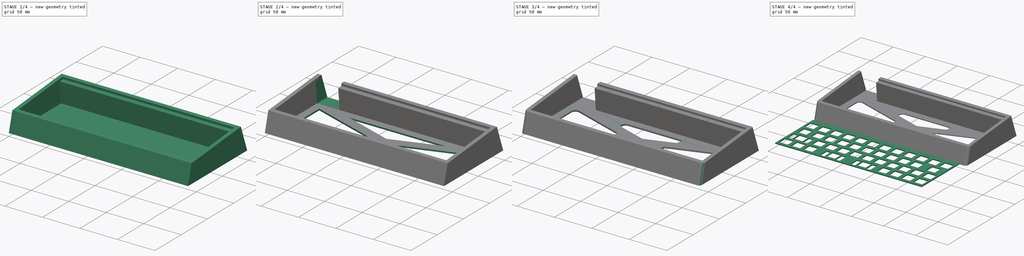
[diagram: build sequence overview — one tinted view per stage of 4, left to right]
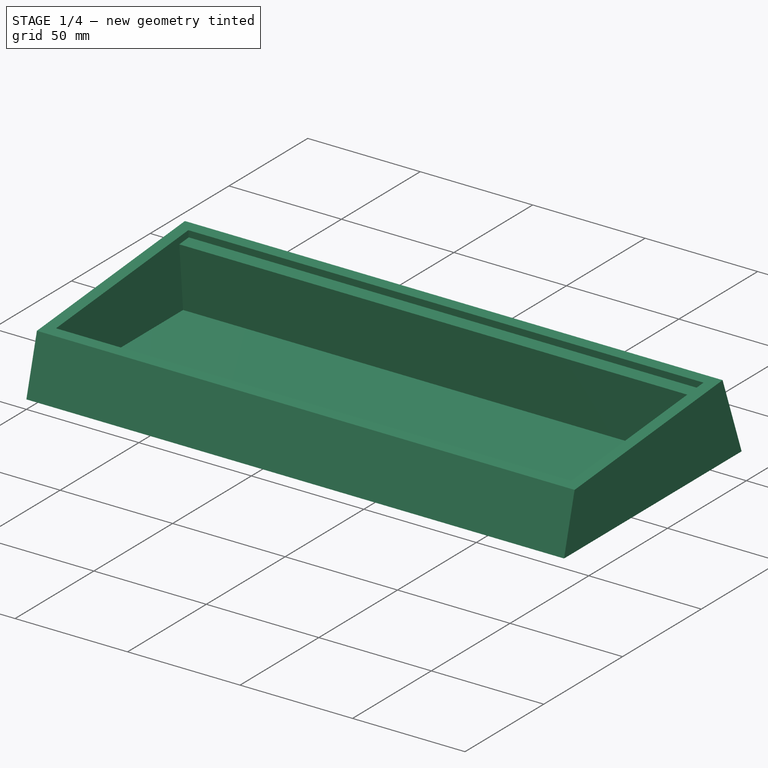
[diagram: stage 1 of 4 — iso view after this stage's code; geometry added in this stage tinted green]
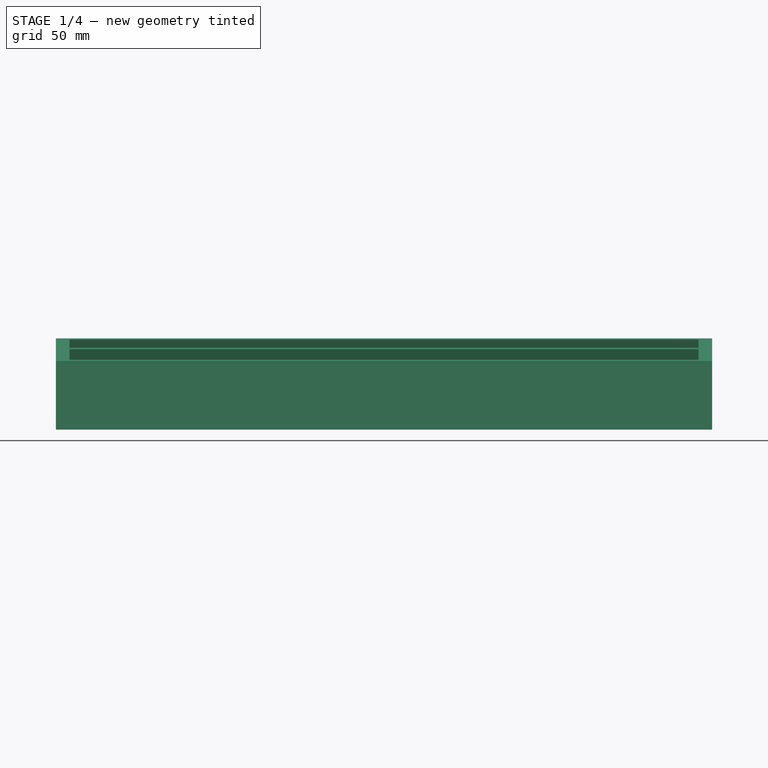
[diagram: stage 1 of 4 — front view after this stage's code; geometry added in this stage tinted green]
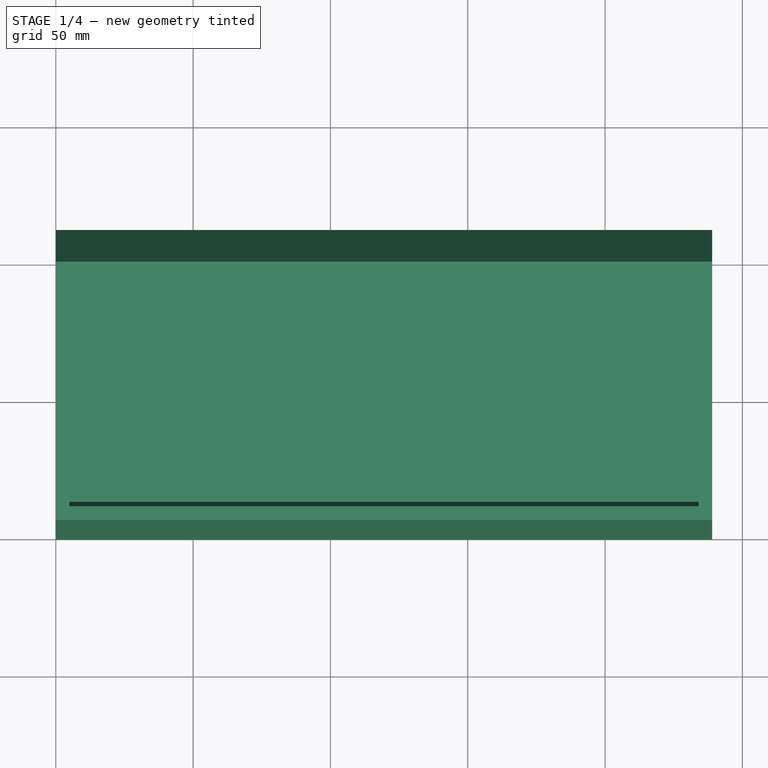
[diagram: stage 1 of 4 — top view after this stage's code; geometry added in this stage tinted green]
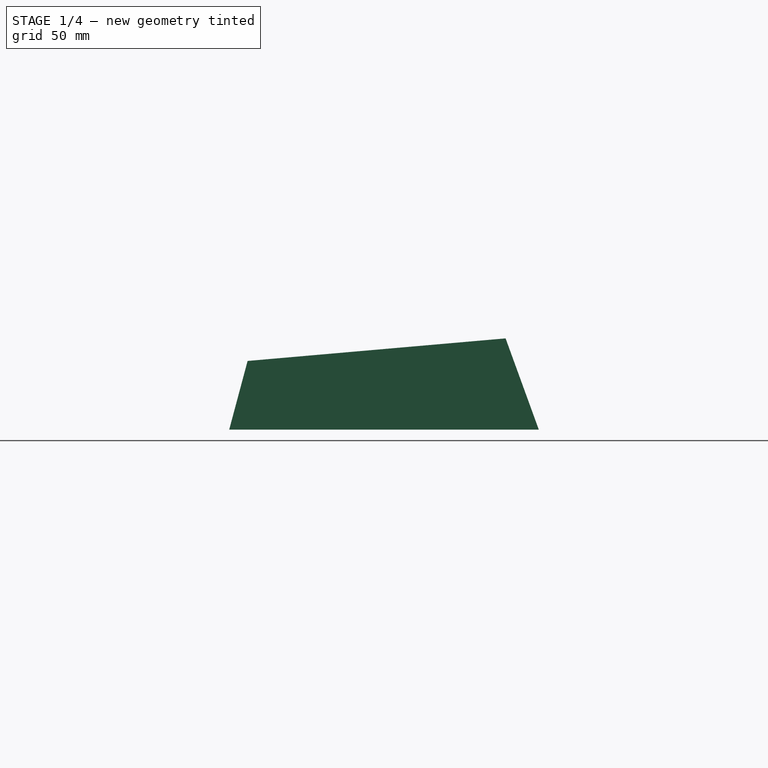
[diagram: stage 1 of 4 — right view after this stage's code; geometry added in this stage tinted green]
FCSTD DOCUMENT  (FreeCAD 0.20R)
Label: 40percent
License: All rights reserved
LicenseURL: http://en.wikipedia.org/wiki/All_rights_reserved
objects: Sketcher::SketchObject×9, PartDesign::Pad×4, PartDesign::Fillet×4, PartDesign::Pocket×3, PartDesign::Hole×2, PartDesign::Body×2
note: 37 computed .brp shape members not serialized (recipe doc carries the construction recipe); baked Part::Feature solids carry a one-line shape summary decoded from their .brp

FEATURE [Sketcher::SketchObject] Sketch
  FullyConstrained = true
  MapMode = 5
  Placement = pos=(0,0,0) rot=(0.57735,0.57735,0.57735;2.0944rad)
  Support = -> [YZ_Plane]
  sketch-geometry (4):
    g0: LineSegment StartX=0 StartY=0 StartZ=0 EndX=6.69873 EndY=25 EndZ=0
    g1: LineSegment StartX=6.69873 StartY=25 StartZ=0 EndX=100.64 EndY=33.2188 EndZ=0
    g2: LineSegment StartX=100.64 StartY=33.2188 StartZ=0 EndX=112.731 EndY=0 EndZ=0
    g3: LineSegment StartX=112.731 StartY=0 StartZ=0 EndX=0 EndY=0 EndZ=0
  constraints (11):
    c: Coincident(g-1,g0)
    c: Coincident(g0,g1)
    c: Coincident(g1,g2)
    c: PointOnObject(g2,g-1)
    c: Coincident(g2,g3)
    c: Coincident(g3,g0)
    c: Angle(g3,g1) = 0.0872665
    c: Angle(g3,g0) = 1.309
    c: Angle(g2,g3) = 1.22173
    c: DistanceY(g0,g0) = 25
    c: Distance(g1) = 94.3
FEATURE [PartDesign::Pad] Pad
  Direction = (1,-2e-16,3e-16)
  Length = 239
  Length2 = 10
  Placement = pos=(0,0,0) rot=(0.57735,0.57735,0.57735;2.0944rad)
  Profile = -> Sketch
  ReferenceAxis = -> Sketch [N_Axis]
  Type = 0
FEATURE [Sketcher::SketchObject] Sketch003
  ExternalGeometry = -> [Pad]
  FullyConstrained = true
  MapMode = 5
  Placement = pos=(-7.8e-15,-2.11972,24.2285) rot=(0.043578,0.043578,-0.998099;1.5727rad)
  Support = -> [Pad]
  sketch-geometry (4):
    g0: LineSegment StartX=-98.1521 StartY=234 StartZ=0 EndX=-13.8521 EndY=234 EndZ=0
    g1: LineSegment StartX=-13.8521 StartY=234 StartZ=0 EndX=-13.8521 EndY=5 EndZ=0
    g2: LineSegment StartX=-13.8521 StartY=5 StartZ=0 EndX=-98.1521 EndY=5 EndZ=0
    g3: LineSegment StartX=-98.1521 StartY=5 StartZ=0 EndX=-98.1521 EndY=234 EndZ=0
  constraints (12):
    c: Coincident(g0,g1)
    c: Coincident(g1,g2)
    c: Coincident(g2,g3)
    c: Coincident(g3,g0)
    c: Horizontal(g0)
    c: Horizontal(g2)
    c: Vertical(g1)
    c: Vertical(g3)
    c: DistanceY(g-3,g1) = 5
    c: DistanceX(g1,g-3) = 5
    c: DistanceX(g-5,g0) = 5
    c: DistanceY(g0,g-5) = 5
FEATURE [PartDesign::Pocket] Pocket
  AlongSketchNormal = false
  BaseFeature = -> Pad
  Direction = (4e-16,0.0871557,-0.996195)
  Length = 0
  Length2 = 5
  Offset = -2
  Placement = pos=(0,0,0) rot=(0.57735,0.57735,0.57735;2.0944rad)
  Profile = -> Sketch003
  ReferenceAxis = -> Sketch003 [N_Axis]
  Type = 3
  UpToFace = -> Pad [Face4]
FEATURE [Sketcher::SketchObject] Sketch004
  ExternalGeometry = -> [Pocket]
  FullyConstrained = true
  MapMode = 5
  Placement = pos=(4.32e-14,97.7786,8.55452) rot=(0.593426,0.593426,-0.543775;2.14549rad)
  Support = -> [Pocket]
  sketch-geometry (4):
    g0: LineSegment StartX=6.5872 StartY=5 StartZ=0 EndX=-21.321 EndY=5 EndZ=0
    g1: LineSegment StartX=-21.321 StartY=5 StartZ=0 EndX=-21.321 EndY=234 EndZ=0
    g2: LineSegment StartX=-21.321 StartY=234 StartZ=0 EndX=6.5872 EndY=234 EndZ=0
    g3: LineSegment StartX=6.5872 StartY=234 StartZ=0 EndX=6.5872 EndY=5 EndZ=0
  constraints (11):
    c: Coincident(g0,g1)
    c: Coincident(g1,g2)
    c: Coincident(g2,g3)
    c: Coincident(g3,g0)
    c: Horizontal(g0)
    c: Horizontal(g2)
    c: Vertical(g1)
    c: Vertical(g3)
    c: Coincident(g0,g-3)
    c: PointOnObject(g1,g-5)
    c: DistanceX(g-5,g1) = 3
FEATURE [PartDesign::Pad] Pad001
  BaseFeature = -> Pocket
  Direction = (-4e-16,-0.996195,-0.0871557)
  Length = 6
  Length2 = 10
  Placement = pos=(0,0,0) rot=(0.57735,0.57735,0.57735;2.0944rad)
  Profile = -> Sketch004
  ReferenceAxis = -> Sketch004 [N_Axis]
  Type = 0
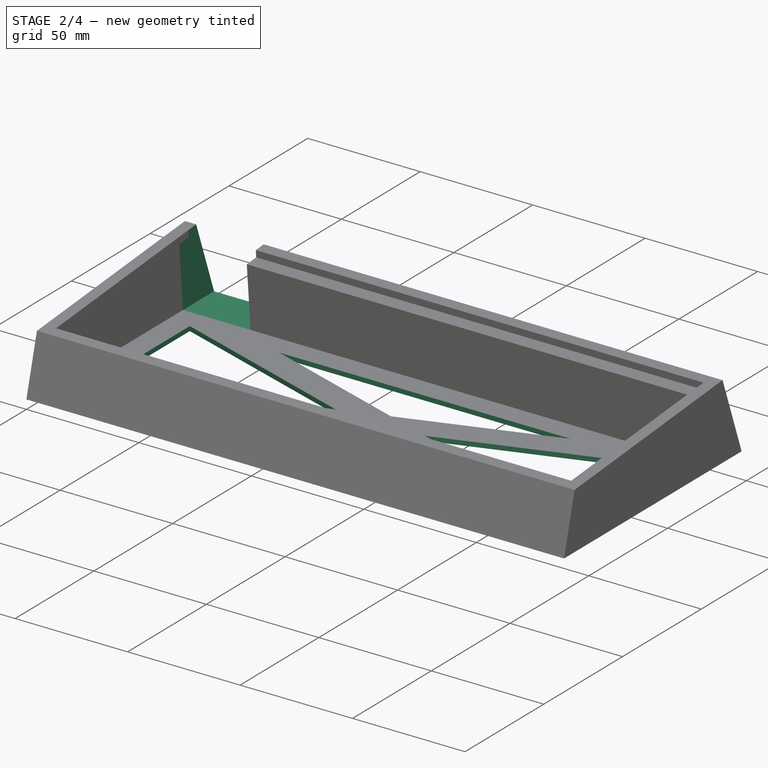
[diagram: stage 2 of 4 — iso view after this stage's code; geometry added in this stage tinted green]
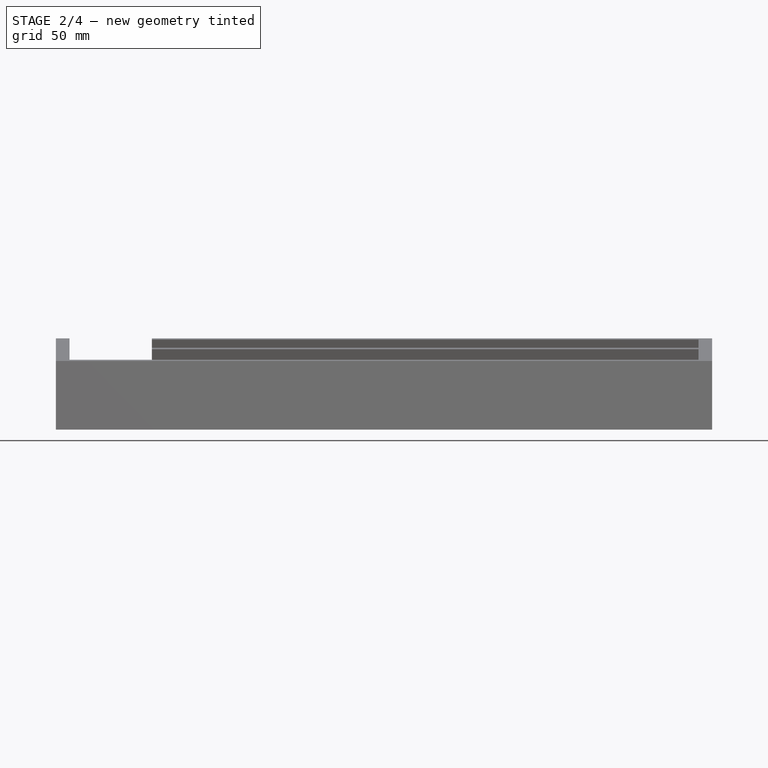
[diagram: stage 2 of 4 — front view after this stage's code; geometry added in this stage tinted green]
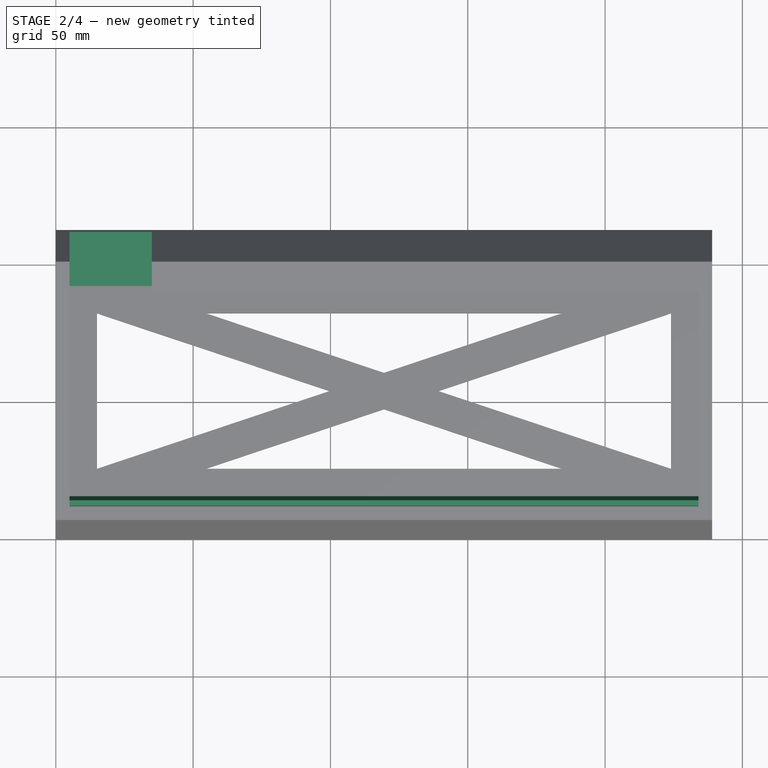
[diagram: stage 2 of 4 — top view after this stage's code; geometry added in this stage tinted green]
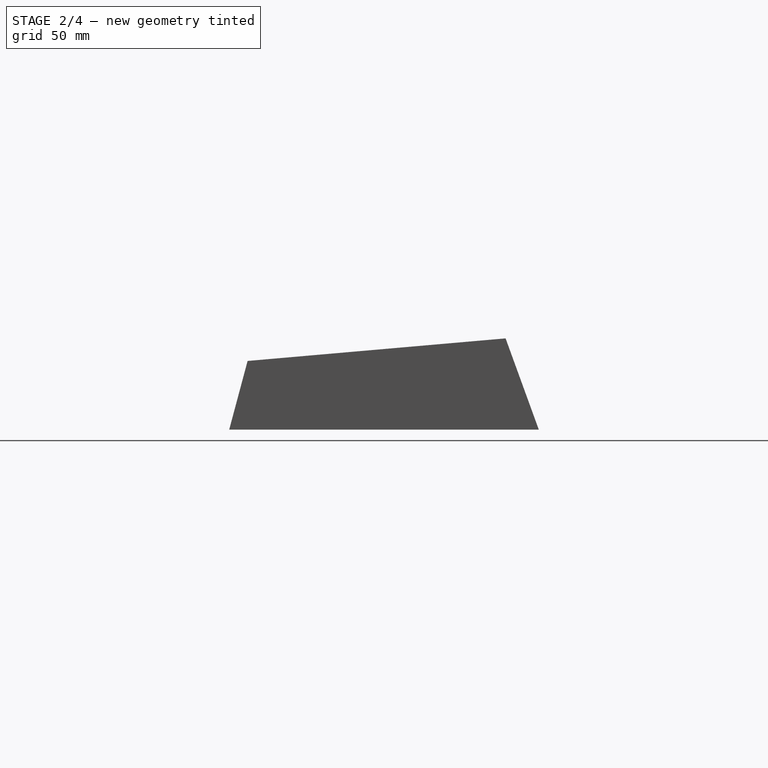
[diagram: stage 2 of 4 — right view after this stage's code; geometry added in this stage tinted green]
FEATURE [PartDesign::Body] Body001  label="Plate"
  Group = -> [Sketch008,Pad003,Sketch009,Hole]
  Origin = -> Origin001
  Placement = pos=(5.2,95.8723,29.789) rot=(1,0,0;0.087266rad)
  Tip = -> Hole
FEATURE [PartDesign::Pad] Pad004
  BaseFeature = -> Pad001
  Direction = (7e-16,0.996195,0.0871557)
  Length = 2
  Length2 = 10
  Placement = pos=(0,0,0) rot=(0.57735,0.57735,0.57735;2.0944rad)
  Profile = -> Sketch005
  ReferenceAxis = -> Sketch005 [N_Axis]
  Type = 0
FEATURE [Sketcher::SketchObject] Sketch006
  ExternalGeometry = -> [Pad004]
  FullyConstrained = true
  MapMode = 5
  Placement = pos=(-7.8e-15,-2.11972,24.2285) rot=(0.043578,0.043578,-0.998099;1.5727rad)
  Support = -> [Pad004]
  sketch-geometry (4):
    g0: LineSegment StartX=-112.302 StartY=35 StartZ=0 EndX=-92.1521 EndY=35 EndZ=0
    g1: LineSegment StartX=-92.1521 StartY=35 StartZ=0 EndX=-92.1521 EndY=5 EndZ=0
    g2: LineSegment StartX=-92.1521 StartY=5 StartZ=0 EndX=-112.302 EndY=5 EndZ=0
    g3: LineSegment StartX=-112.302 StartY=5 StartZ=0 EndX=-112.302 EndY=35 EndZ=0
  constraints (12):
    c: Coincident(g0,g1)
    c: Coincident(g1,g2)
    c: Coincident(g2,g3)
    c: Coincident(g3,g0)
    c: Horizontal(g0)
    c: Horizontal(g2)
    c: Vertical(g1)
    c: Vertical(g3)
    c: DistanceY(g1,g1) = 30
    c: PointOnObject(g0,g-3)
    c: PointOnObject(g0,g-4)
    c: PointOnObject(g1,g-5)
FEATURE [PartDesign::Pocket] Pocket001
  BaseFeature = -> Pad004
  Direction = (1.4e-15,0.0871557,-0.996195)
  Length = 0
  Length2 = 5
  Placement = pos=(0,0,0) rot=(0.57735,0.57735,0.57735;2.0944rad)
  Profile = -> Sketch006
  ReferenceAxis = -> Sketch006 [N_Axis]
  Type = 3
  UpToFace = -> Pad004 [Face13]
FEATURE [Sketcher::SketchObject] Sketch007
  ExternalGeometry = -> [Pocket001]
  FullyConstrained = true
  MapMode = 5
  Placement = pos=(-1.2e-15,1.1e-15,1.99239) rot=(0,0,-1;1.5708rad)
  Support = -> [Pocket001]
  sketch-geometry (20):
    g0: LineSegment StartX=-92.3298 StartY=5 StartZ=0 EndX=-15.7384 EndY=234 EndZ=0
    g1: LineSegment StartX=-92.3298 StartY=234 StartZ=0 EndX=-15.7384 EndY=5 EndZ=0
    g2: GeomPoint X=-54.0341 Y=119.5 Z=0
    g3: LineSegment StartX=-92.3298 StartY=224 StartZ=0 EndX=-15.7384 EndY=224 EndZ=0
    g4: LineSegment StartX=-92.3298 StartY=15 StartZ=0 EndX=-15.7384 EndY=15 EndZ=0
    g5: LineSegment StartX=-82.3298 StartY=5 StartZ=0 EndX=-82.3298 EndY=234 EndZ=0
    g6: LineSegment StartX=-25.7384 StartY=5 StartZ=0 EndX=-25.7384 EndY=234 EndZ=0
    g7: LineSegment StartX=-54.0341 StartY=99.6011 StartZ=0 EndX=-82.3298 EndY=15 EndZ=0
    g8: LineSegment StartX=-82.3298 StartY=15 StartZ=0 EndX=-25.7384 EndY=15 EndZ=0
    g9: LineSegment StartX=-25.7384 StartY=15 StartZ=0 EndX=-54.0341 EndY=99.6011 EndZ=0
    g10: LineSegment StartX=-54.0341 StartY=139.399 StartZ=0 EndX=-82.3298 EndY=224 EndZ=0
    g11: LineSegment StartX=-82.3298 StartY=224 StartZ=0 EndX=-25.7384 EndY=224 EndZ=0
    g12: LineSegment StartX=-25.7384 StartY=224 StartZ=0 EndX=-54.0341 EndY=139.399 EndZ=0
    g13: LineSegment StartX=-82.3298 StartY=54.7978 StartZ=0 EndX=-82.3298 EndY=184.202 EndZ=0
    g14: LineSegment StartX=-82.3298 StartY=184.202 StartZ=0 EndX=-60.6895 EndY=119.5 EndZ=0
    g15: LineSegment StartX=-60.6895 StartY=119.5 StartZ=0 EndX=-82.3298 EndY=54.7978 EndZ=0
    g16: LineSegment StartX=-47.3787 StartY=119.5 StartZ=0 EndX=-25.7384 EndY=54.7978 EndZ=0
    g17: LineSegment StartX=-25.7384 StartY=54.7978 StartZ=0 EndX=-25.7384 EndY=184.202 EndZ=0
    g18: LineSegment StartX=-25.7384 StartY=184.202 StartZ=0 EndX=-47.3787 EndY=119.5 EndZ=0
    g19: GeomPoint X=-82.3298 Y=34.8989 Z=0
  constraints (57):
    c: PointOnObject(g2,g0)
    c: PointOnObject(g2,g1)
    c: Horizontal(g4)
    c: Vertical(g5)
    c: Vertical(g6)
    c: DistanceY(g3,g0) = 10
    c: DistanceY(g3,g1) = 10
    c: DistanceY(g0,g4) = 10
    c: DistanceX(g6,g1) = 10
    c: DistanceX(g0,g5) = 10
    c: PointOnObject(g7,g5)
    c: Coincident(g7,g8)
    c: PointOnObject(g8,g6)
    c: Horizontal(g8)
    c: Coincident(g8,g9)
    c: Coincident(g9,g7)
    c: PointOnObject(g10,g5)
    c: Coincident(g10,g11)
    c: PointOnObject(g11,g6)
    c: Coincident(g11,g12)
    c: Coincident(g12,g10)
    c: PointOnObject(g13,g5)
    c: PointOnObject(g13,g5)
    c: Coincident(g13,g14)
    c: Coincident(g14,g15)
    c: Coincident(g15,g13)
    c: PointOnObject(g16,g6)
    c: Coincident(g16,g17)
    c: PointOnObject(g17,g6)
    c: Coincident(g17,g18)
    c: Coincident(g18,g16)
    c: Horizontal(g14,g2)
    c: Vertical(g7,g2)
    c: Symmetric(g16,g14,g2)
    c: Symmetric(g10,g7,g2)
    c: Parallel(g1,g9)
    c: Parallel(g9,g16)
    c: PointOnObject(g7,g4)
    c: Horizontal(g11)
    c: PointOnObject(g10,g3)
    c: Parallel(g0,g15)
    c: Parallel(g14,g1)
    c: Parallel(g18,g0)
    c: PointOnObject(g19,g0)
    c: Symmetric(g7,g13,g19)
    c: Coincident(g1,g-7)
    c: PointOnObject(g5,g-7)
    c: PointOnObject(g6,g-7)
    c: Coincident(g-7,g0)
    c: PointOnObject(g6,g-3)
    c: Coincident(g1,g-6)
    c: Coincident(g0,g-5)
    c: PointOnObject(g5,g-3)
    c: Vertical(g3,g1)
    c: Vertical(g3,g0)
    c: Vertical(g4,g1)
    c: Vertical(g4,g0)
FEATURE [PartDesign::Pocket] Pocket002
  BaseFeature = -> Pocket001
  Direction = (1.7e-15,-1e-15,-1)
  Length = 0
  Length2 = 5
  Placement = pos=(0,0,0) rot=(0.57735,0.57735,0.57735;2.0944rad)
  Profile = -> Sketch007
  ReferenceAxis = -> Sketch007 [N_Axis]
  Type = 3
  UpToFace = -> Pocket001 [Face2]
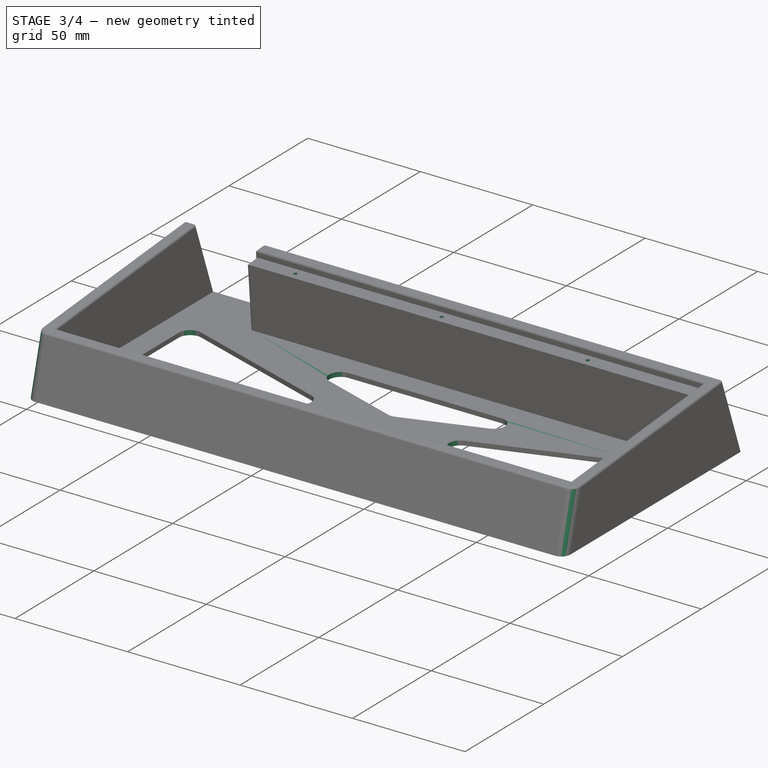
[diagram: stage 3 of 4 — iso view after this stage's code; geometry added in this stage tinted green]
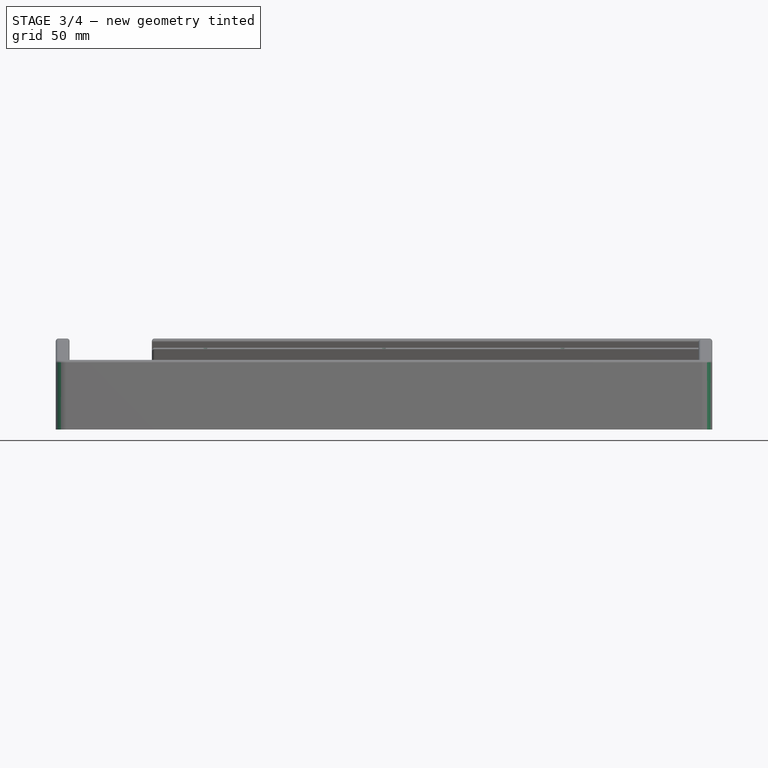
[diagram: stage 3 of 4 — front view after this stage's code; geometry added in this stage tinted green]
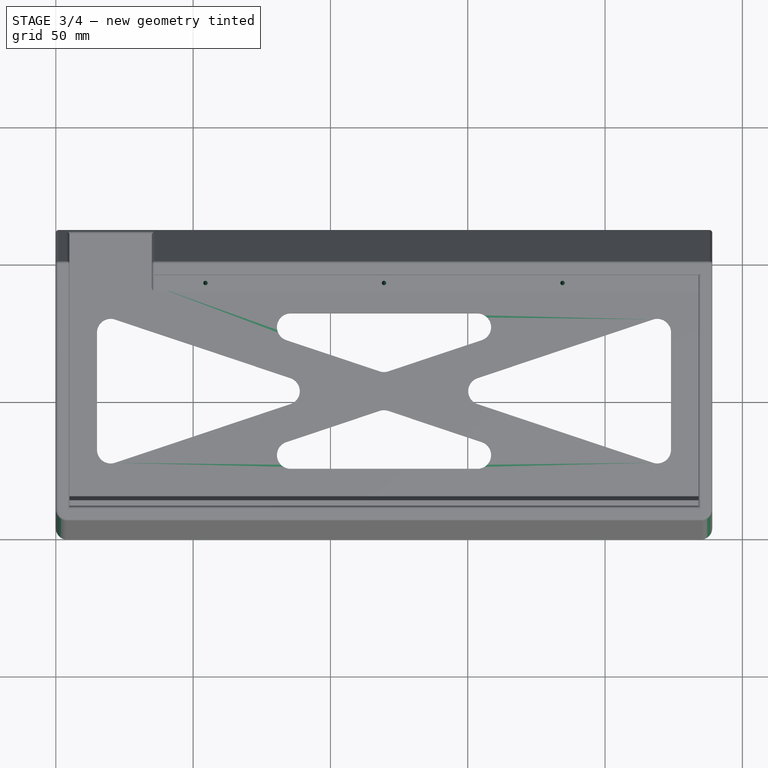
[diagram: stage 3 of 4 — top view after this stage's code; geometry added in this stage tinted green]
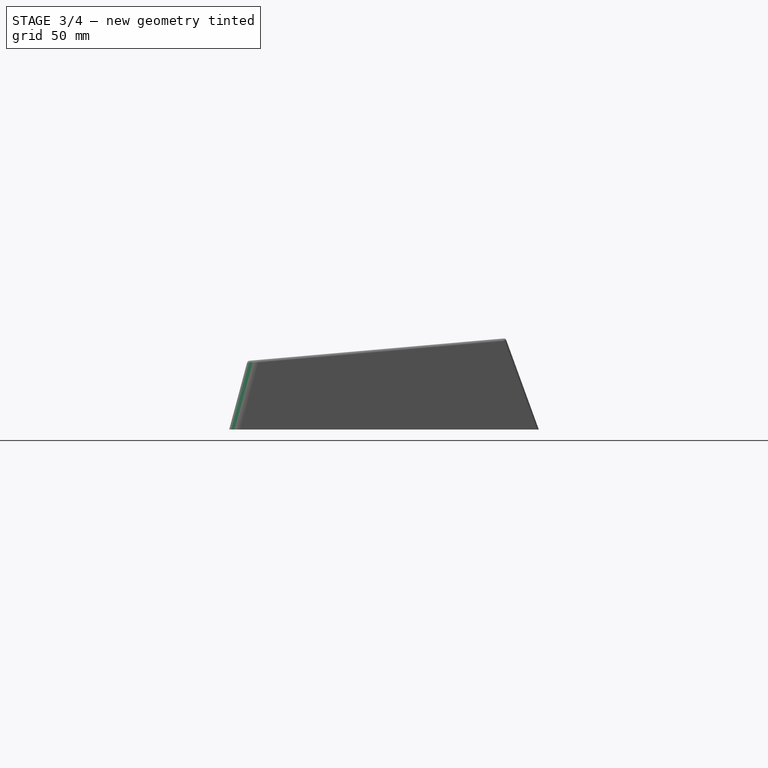
[diagram: stage 3 of 4 — right view after this stage's code; geometry added in this stage tinted green]
FEATURE [Sketcher::SketchObject] Sketch010
  ExternalGeometry = -> [Pocket002]
  FullyConstrained = true
  MapMode = 5
  Placement = pos=(-5.1e-15,-1.85825,21.2399) rot=(0.043578,0.043578,-0.998099;1.5727rad)
  Support = -> [Pocket002]
  sketch-geometry (6):
    g0: Circle CenterX=-95.1521 CenterY=54.5 CenterZ=0 NormalX=0 NormalY=0 NormalZ=1 AngleXU=0 Radius=1
    g1: Circle CenterX=-95.1521 CenterY=119.5 CenterZ=0 NormalX=0 NormalY=0 NormalZ=1 AngleXU=0 Radius=1
    g2: Circle CenterX=-95.1521 CenterY=184.5 CenterZ=0 NormalX=0 NormalY=0 NormalZ=1 AngleXU=0 Radius=1
    g3: LineSegment StartX=-95.1521 StartY=54.5 StartZ=0 EndX=-95.1521 EndY=119.5 EndZ=0
    g4: LineSegment StartX=-95.1521 StartY=119.5 StartZ=0 EndX=-95.1521 EndY=184.5 EndZ=0
    g5: GeomPoint X=-103.152 Y=119.5 Z=0
  constraints (14):
    c: Equal(g2,g1)
    c: Equal(g1,g0)
    c: Coincident(g3,g0)
    c: Coincident(g3,g1)
    c: Vertical(g3)
    c: Coincident(g4,g1)
    c: Coincident(g4,g2)
    c: Vertical(g4)
    c: Equal(g4,g3)
    c: Diameter(g0) = 2
    c: DistanceX(g-3,g0) = 3
    c: Symmetric(g-4,g-5,g5)
    c: Horizontal(g1,g5)
    c: DistanceY(g1,g2) = 65
FEATURE [PartDesign::Hole] Hole001
  BaseFeature = -> Pocket002
  CustomThreadClearance = 0
  Depth = 539.714
  DepthType = 1
  Diameter = 1.6
  DrillForDepth = false
  DrillPoint = 1
  DrillPointAngle = 118
  HoleCutCountersinkAngle = 90
  HoleCutCustomValues = false
  HoleCutDepth = 0
  HoleCutDiameter = 6.1
  HoleCutType = 0
  ModelThread = false
  Placement = pos=(0,0,0) rot=(0.57735,0.57735,0.57735;2.0944rad)
  Profile = -> Sketch010
  Tapered = false
  TaperedAngle = 90
  ThreadClass = 0
  ThreadDepth = 539.714
  ThreadDepthType = 0
  ThreadDirection = 0
  ThreadFit = 0
  ThreadSize = 6
  ThreadType = 1
  Threaded = true
  UseCustomThreadClearance = false
FEATURE [PartDesign::Fillet] Fillet
  Base = -> Hole001 [Edge3,Edge4]
  BaseFeature = -> Hole001
  Placement = pos=(0,0,0) rot=(0.57735,0.57735,0.57735;2.0944rad)
  Radius = 4
  SupportTransform = false
  UseAllEdges = false
FEATURE [PartDesign::Fillet] Fillet001
  Base = -> Fillet [Edge44,Face5,Edge40,Edge43,Edge42,Edge41,Edge87,Edge88]
  BaseFeature = -> Fillet
  Placement = pos=(0,0,0) rot=(0.57735,0.57735,0.57735;2.0944rad)
  Radius = 1
  SupportTransform = false
  UseAllEdges = false
FEATURE [PartDesign::Fillet] Fillet002
  Base = -> Fillet001 [Edge66,Edge81,Edge68,Edge72,Edge87,Edge65,Edge71,Edge74,Edge82,Edge84,Edge88,Edge90]
  BaseFeature = -> Fillet001
  Placement = pos=(0,0,0) rot=(0.57735,0.57735,0.57735;2.0944rad)
  Radius = 5
  SupportTransform = false
  UseAllEdges = false
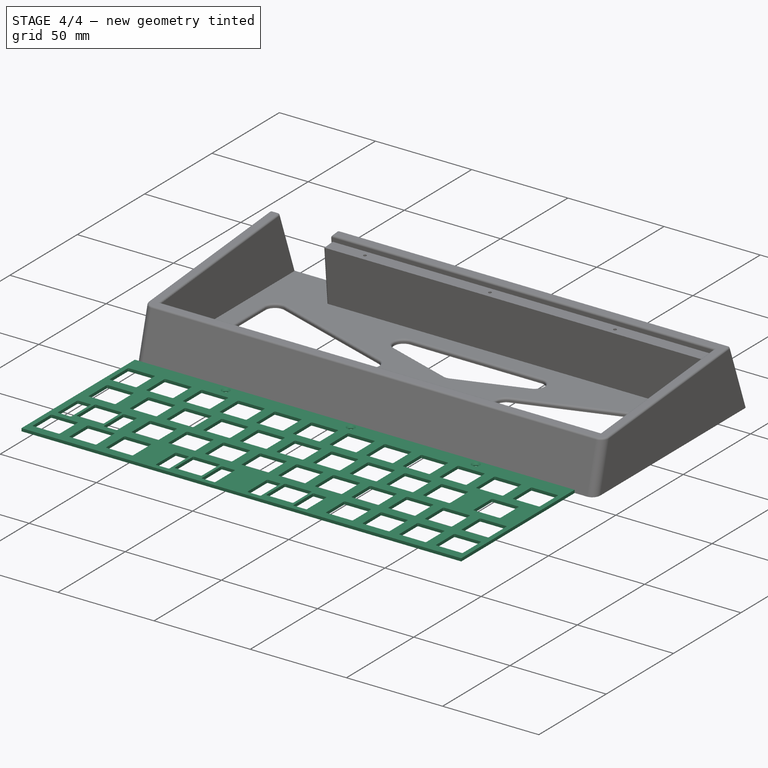
[diagram: stage 4 of 4 — iso view after this stage's code; geometry added in this stage tinted green]
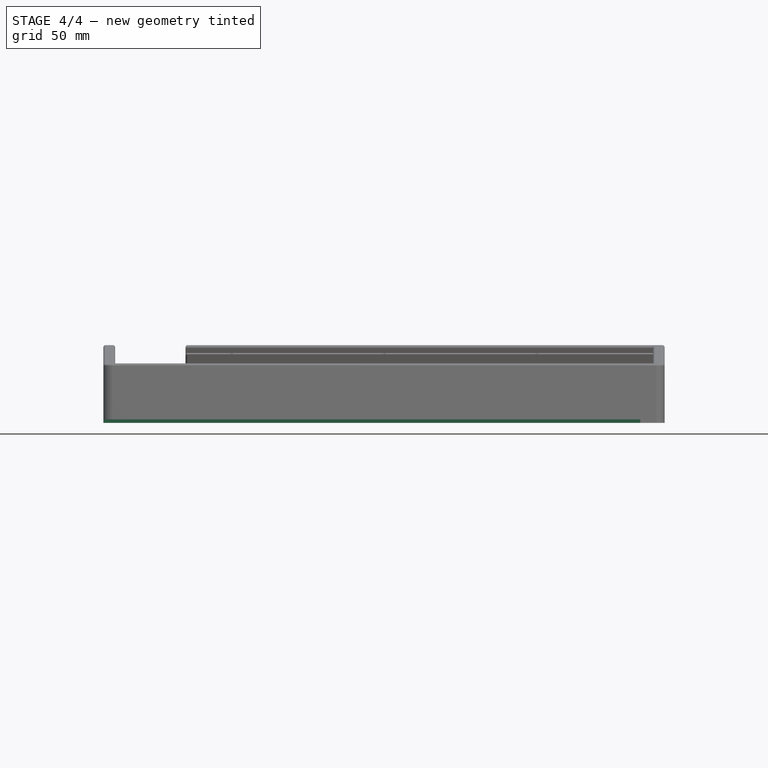
[diagram: stage 4 of 4 — front view after this stage's code; geometry added in this stage tinted green]
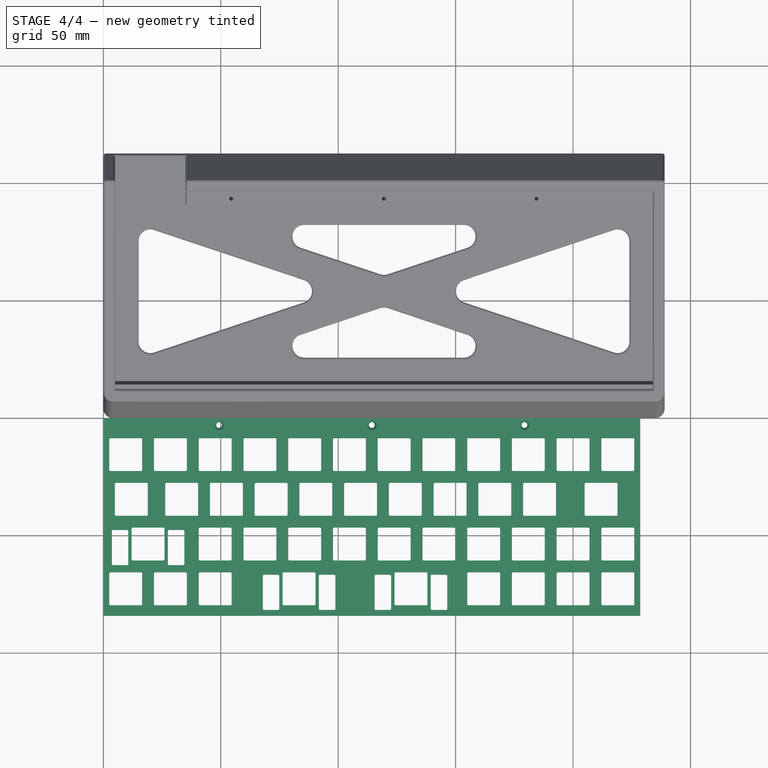
[diagram: stage 4 of 4 — top view after this stage's code; geometry added in this stage tinted green]
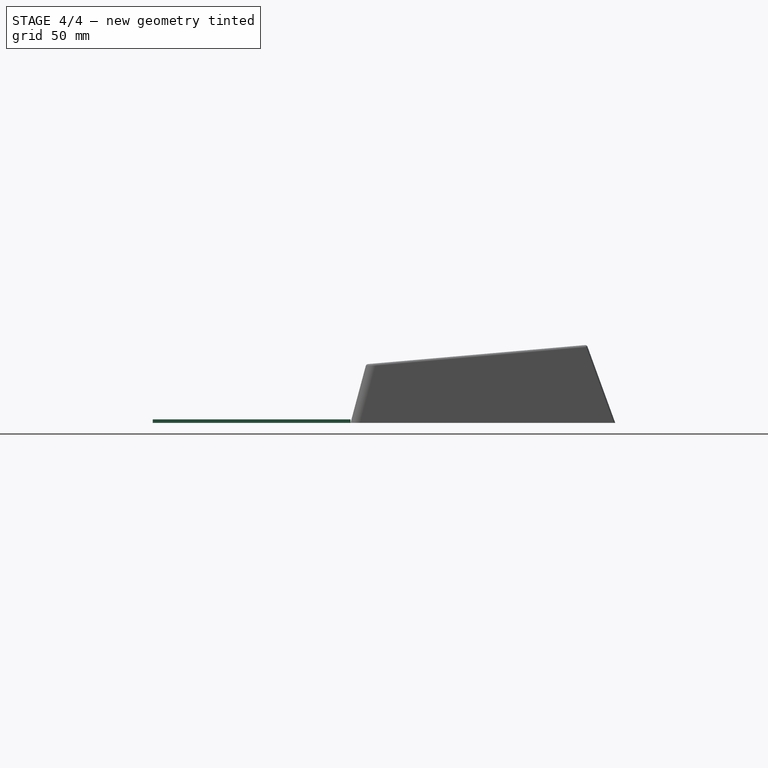
[diagram: stage 4 of 4 — right view after this stage's code; geometry added in this stage tinted green]
FEATURE [Sketcher::SketchObject] Sketch005
  ExternalGeometry = -> [Pad001]
  FullyConstrained = true
  MapMode = 5
  Placement = pos=(6.1e-15,13.7994,1.20729) rot=(-0.559809,-0.559809,-0.610924;2.04477rad)
  Support = -> [Pad001]
  sketch-geometry (4):
    g0: LineSegment StartX=21.321 StartY=5 StartZ=0 EndX=-0.211905 EndY=5 EndZ=0
    g1: LineSegment StartX=-0.211905 StartY=5 StartZ=0 EndX=-0.211905 EndY=234 EndZ=0
    g2: LineSegment StartX=-0.211905 StartY=234 StartZ=0 EndX=21.321 EndY=234 EndZ=0
    g3: LineSegment StartX=21.321 StartY=234 StartZ=0 EndX=21.321 EndY=5 EndZ=0
  constraints (12):
    c: Coincident(g0,g1)
    c: Coincident(g1,g2)
    c: Coincident(g2,g3)
    c: Coincident(g3,g0)
    c: Horizontal(g0)
    c: Horizontal(g2)
    c: Vertical(g1)
    c: Vertical(g3)
    c: PointOnObject(g0,g-5)
    c: DistanceX(g2,g-6) = 3
    c: PointOnObject(g1,g-6)
    c: Distance(g1,g-6) = 1
FEATURE [Sketcher::SketchObject] Sketch008
  FullyConstrained = false
  sketch-geometry (396):
    g0: LineSegment StartX=3.025 StartY=-8.525 StartZ=0 EndX=16.025 EndY=-8.525 EndZ=0
    g1: LineSegment StartX=3.025 StartY=-22.525 StartZ=0 EndX=16.025 EndY=-22.525 EndZ=0
    g2: LineSegment StartX=2.525 StartY=-9.025 StartZ=0 EndX=2.525 EndY=-22.025 EndZ=0
    g3: LineSegment StartX=16.525 StartY=-9.025 StartZ=0 EndX=16.525 EndY=-22.025 EndZ=0
    g4: ArcOfCircle CenterX=3.025 CenterY=-9.025 CenterZ=0 NormalX=0 NormalY=0 NormalZ=1 AngleXU=0 Radius=0.5 StartAngle=1.5708 EndAngle=3.14159
    g5: ArcOfCircle CenterX=16.025 CenterY=-9.025 CenterZ=0 NormalX=0 NormalY=0 NormalZ=1 AngleXU=0 Radius=0.5 StartAngle=0 EndAngle=1.5708
    g6: ArcOfCircle CenterX=3.025 CenterY=-22.025 CenterZ=0 NormalX=0 NormalY=0 NormalZ=1 AngleXU=0 Radius=0.5 StartAngle=3.14159 EndAngle=4.71239
    g7: ArcOfCircle CenterX=16.025 CenterY=-22.025 CenterZ=0 NormalX=0 NormalY=0 NormalZ=1 AngleXU=0 Radius=0.5 StartAngle=4.71239 EndAngle=6.28319
    g8: LineSegment StartX=22.075 StartY=-8.525 StartZ=0 EndX=35.075 EndY=-8.525 EndZ=0
    g9: LineSegment StartX=22.075 StartY=-22.525 StartZ=0 EndX=35.075 EndY=-22.525 EndZ=0
    g10: LineSegment StartX=21.575 StartY=-9.025 StartZ=0 EndX=21.575 EndY=-22.025 EndZ=0
    g11: LineSegment StartX=35.575 StartY=-9.025 StartZ=0 EndX=35.575 EndY=-22.025 EndZ=0
    g12: ArcOfCircle CenterX=22.075 CenterY=-9.025 CenterZ=0 NormalX=0 NormalY=0 NormalZ=1 AngleXU=0 Radius=0.5 StartAngle=1.5708 EndAngle=3.14159
    g13: ArcOfCircle CenterX=35.075 CenterY=-9.025 CenterZ=0 NormalX=0 NormalY=0 NormalZ=1 AngleXU=0 Radius=0.5 StartAngle=0 EndAngle=1.5708
    g14: ArcOfCircle CenterX=22.075 CenterY=-22.025 CenterZ=0 NormalX=0 NormalY=0 NormalZ=1 AngleXU=0 Radius=0.5 StartAngle=3.14159 EndAngle=4.71239
    g15: ArcOfCircle CenterX=35.075 CenterY=-22.025 CenterZ=0 NormalX=0 NormalY=0 NormalZ=1 AngleXU=0 Radius=0.5 StartAngle=4.71239 EndAngle=6.28319
    g16: LineSegment StartX=41.125 StartY=-8.525 StartZ=0 EndX=54.125 EndY=-8.525 EndZ=0
    g17: LineSegment StartX=41.125 StartY=-22.525 StartZ=0 EndX=54.125 EndY=-22.525 EndZ=0
    g18: LineSegment StartX=40.625 StartY=-9.025 StartZ=0 EndX=40.625 EndY=-22.025 EndZ=0
    g19: LineSegment StartX=54.625 StartY=-9.025 StartZ=0 EndX=54.625 EndY=-22.025 EndZ=0
    g20: ArcOfCircle CenterX=41.125 CenterY=-9.025 CenterZ=0 NormalX=0 NormalY=0 NormalZ=1 AngleXU=0 Radius=0.5 StartAngle=1.5708 EndAngle=3.14159
    g21: ArcOfCircle CenterX=54.125 CenterY=-9.025 CenterZ=0 NormalX=0 NormalY=0 NormalZ=1 AngleXU=0 Radius=0.5 StartAngle=0 EndAngle=1.5708
    g22: ArcOfCircle CenterX=41.125 CenterY=-22.025 CenterZ=0 NormalX=0 NormalY=0 NormalZ=1 AngleXU=0 Radius=0.5 StartAngle=3.14159 EndAngle=4.71239
    g23: ArcOfCircle CenterX=54.125 CenterY=-22.025 CenterZ=0 NormalX=0 NormalY=0 NormalZ=1 AngleXU=0 Radius=0.5 StartAngle=4.71239 EndAngle=6.28319
    g24: LineSegment StartX=60.175 StartY=-8.525 StartZ=0 EndX=73.175 EndY=-8.525 EndZ=0
    g25: LineSegment StartX=60.175 StartY=-22.525 StartZ=0 EndX=73.175 EndY=-22.525 EndZ=0
    g26: LineSegment StartX=59.675 StartY=-9.025 StartZ=0 EndX=59.675 EndY=-22.025 EndZ=0
    g27: LineSegment StartX=73.675 StartY=-9.025 StartZ=0 EndX=73.675 EndY=-22.025 EndZ=0
    g28: ArcOfCircle CenterX=60.175 CenterY=-9.025 CenterZ=0 NormalX=0 NormalY=0 NormalZ=1 AngleXU=0 Radius=0.5 StartAngle=1.5708 EndAngle=3.14159
    g29: ArcOfCircle CenterX=73.175 CenterY=-9.025 CenterZ=0 NormalX=0 NormalY=0 NormalZ=1 AngleXU=0 Radius=0.5 StartAngle=0 EndAngle=1.5708
    g30: ArcOfCircle CenterX=60.175 CenterY=-22.025 CenterZ=0 NormalX=0 NormalY=0 NormalZ=1 AngleXU=0 Radius=0.5 StartAngle=3.14159 EndAngle=4.71239
    g31: ArcOfCircle CenterX=73.175 CenterY=-22.025 CenterZ=0 NormalX=0 NormalY=0 NormalZ=1 AngleXU=0 Radius=0.5 StartAngle=4.71239 EndAngle=6.28319
    g32: LineSegment StartX=79.225 StartY=-8.525 StartZ=0 EndX=92.225 EndY=-8.525 EndZ=0
    g33: LineSegment StartX=79.225 StartY=-22.525 StartZ=0 EndX=92.225 EndY=-22.525 EndZ=0
    g34: LineSegment StartX=78.725 StartY=-9.025 StartZ=0 EndX=78.725 EndY=-22.025 EndZ=0
    g35: LineSegment StartX=92.725 StartY=-9.025 StartZ=0 EndX=92.725 EndY=-22.025 EndZ=0
    g36: ArcOfCircle CenterX=79.225 CenterY=-9.025 CenterZ=0 NormalX=0 NormalY=0 NormalZ=1 AngleXU=0 Radius=0.5 StartAngle=1.5708 EndAngle=3.14159
    g37: ArcOfCircle CenterX=92.225 CenterY=-9.025 CenterZ=0 NormalX=0 NormalY=0 NormalZ=1 AngleXU=0 Radius=0.5 StartAngle=0 EndAngle=1.5708
    g38: ArcOfCircle CenterX=79.225 CenterY=-22.025 CenterZ=0 NormalX=0 NormalY=0 NormalZ=1 AngleXU=0 Radius=0.5 StartAngle=3.14159 EndAngle=4.71239
    g39: ArcOfCircle CenterX=92.225 CenterY=-22.025 CenterZ=0 NormalX=0 NormalY=0 NormalZ=1 AngleXU=0 Radius=0.5 StartAngle=4.71239 EndAngle=6.28319
    g40: LineSegment StartX=98.275 StartY=-8.525 StartZ=0 EndX=111.275 EndY=-8.525 EndZ=0
    g41: LineSegment StartX=98.275 StartY=-22.525 StartZ=0 EndX=111.275 EndY=-22.525 EndZ=0
    g42: LineSegment StartX=97.775 StartY=-9.025 StartZ=0 EndX=97.775 EndY=-22.025 EndZ=0
    g43: LineSegment StartX=111.775 StartY=-9.025 StartZ=0 EndX=111.775 EndY=-22.025 EndZ=0
    g44: ArcOfCircle CenterX=98.275 CenterY=-9.025 CenterZ=0 NormalX=0 NormalY=0 NormalZ=1 AngleXU=0 Radius=0.5 StartAngle=1.5708 EndAngle=3.14159
    g45: ArcOfCircle CenterX=111.275 CenterY=-9.025 CenterZ=0 NormalX=0 NormalY=0 NormalZ=1 AngleXU=0 Radius=0.5 StartAngle=0 EndAngle=1.5708
    g46: ArcOfCircle CenterX=98.275 CenterY=-22.025 CenterZ=0 NormalX=0 NormalY=0 NormalZ=1 AngleXU=0 Radius=0.5 StartAngle=3.14159 EndAngle=4.71239
    g47: ArcOfCircle CenterX=111.275 CenterY=-22.025 CenterZ=0 NormalX=0 NormalY=0 NormalZ=1 AngleXU=0 Radius=0.5 StartAngle=4.71239 EndAngle=6.28319
    g48: LineSegment StartX=117.325 StartY=-8.525 StartZ=0 EndX=130.325 EndY=-8.525 EndZ=0
    g49: LineSegment StartX=117.325 StartY=-22.525 StartZ=0 EndX=130.325 EndY=-22.525 EndZ=0
    g50: LineSegment StartX=116.825 StartY=-9.025 StartZ=0 EndX=116.825 EndY=-22.025 EndZ=0
    g51: LineSegment StartX=130.825 StartY=-9.025 StartZ=0 EndX=130.825 EndY=-22.025 EndZ=0
    g52: ArcOfCircle CenterX=117.325 CenterY=-9.025 CenterZ=0 NormalX=0 NormalY=0 NormalZ=1 AngleXU=0 Radius=0.5 StartAngle=1.5708 EndAngle=3.14159
    g53: ArcOfCircle CenterX=130.325 CenterY=-9.025 CenterZ=0 NormalX=0 NormalY=0 NormalZ=1 AngleXU=0 Radius=0.5 StartAngle=0 EndAngle=1.5708
    g54: ArcOfCircle CenterX=117.325 CenterY=-22.025 CenterZ=0 NormalX=0 NormalY=0 NormalZ=1 AngleXU=0 Radius=0.5 StartAngle=3.14159 EndAngle=4.71239
    g55: ArcOfCircle CenterX=130.325 CenterY=-22.025 CenterZ=0 NormalX=0 NormalY=0 NormalZ=1 AngleXU=0 Radius=0.5 StartAngle=4.71239 EndAngle=6.28319
    g56: LineSegment StartX=136.375 StartY=-8.525 StartZ=0 EndX=149.375 EndY=-8.525 EndZ=0
    g57: LineSegment StartX=136.375 StartY=-22.525 StartZ=0 EndX=149.375 EndY=-22.525 EndZ=0
    g58: LineSegment StartX=135.875 StartY=-9.025 StartZ=0 EndX=135.875 EndY=-22.025 EndZ=0
    g59: LineSegment StartX=149.875 StartY=-9.025 StartZ=0 EndX=149.875 EndY=-22.025 EndZ=0
    g60: ArcOfCircle CenterX=136.375 CenterY=-9.025 CenterZ=0 NormalX=0 NormalY=0 NormalZ=1 AngleXU=0 Radius=0.5 StartAngle=1.5708 EndAngle=3.14159
    g61: ArcOfCircle CenterX=149.375 CenterY=-9.025 CenterZ=0 NormalX=0 NormalY=0 NormalZ=1 AngleXU=0 Radius=0.5 StartAngle=0 EndAngle=1.5708
    g62: ArcOfCircle CenterX=136.375 CenterY=-22.025 CenterZ=0 NormalX=0 NormalY=0 NormalZ=1 AngleXU=0 Radius=0.5 StartAngle=3.14159 EndAngle=4.71239
    g63: ArcOfCircle CenterX=149.375 CenterY=-22.025 CenterZ=0 NormalX=0 NormalY=0 NormalZ=1 AngleXU=0 Radius=0.5 StartAngle=4.71239 EndAngle=6.28319
    g64: LineSegment StartX=155.425 StartY=-8.525 StartZ=0 EndX=168.425 EndY=-8.525 EndZ=0
    g65: LineSegment StartX=155.425 StartY=-22.525 StartZ=0 EndX=168.425 EndY=-22.525 EndZ=0
    g66: LineSegment StartX=154.925 StartY=-9.025 StartZ=0 EndX=154.925 EndY=-22.025 EndZ=0
    g67: LineSegment StartX=168.925 StartY=-9.025 StartZ=0 EndX=168.925 EndY=-22.025 EndZ=0
    g68: ArcOfCircle CenterX=155.425 CenterY=-9.025 CenterZ=0 NormalX=0 NormalY=0 NormalZ=1 AngleXU=0 Radius=0.5 StartAngle=1.5708 EndAngle=3.14159
    g69: ArcOfCircle CenterX=168.425 CenterY=-9.025 CenterZ=0 NormalX=0 NormalY=0 NormalZ=1 AngleXU=0 Radius=0.5 StartAngle=0 EndAngle=1.5708
    g70: ArcOfCircle CenterX=155.425 CenterY=-22.025 CenterZ=0 NormalX=0 NormalY=0 NormalZ=1 AngleXU=0 Radius=0.5 StartAngle=3.14159 EndAngle=4.71239
    g71: ArcOfCircle CenterX=168.425 CenterY=-22.025 CenterZ=0 NormalX=0 NormalY=0 NormalZ=1 AngleXU=0 Radius=0.5 StartAngle=4.71239 EndAngle=6.28319
    g72: LineSegment StartX=174.475 StartY=-8.525 StartZ=0 EndX=187.475 EndY=-8.525 EndZ=0
    g73: LineSegment StartX=174.475 StartY=-22.525 StartZ=0 EndX=187.475 EndY=-22.525 EndZ=0
    g74: LineSegment StartX=173.975 StartY=-9.025 StartZ=0 EndX=173.975 EndY=-22.025 EndZ=0
    g75: LineSegment StartX=187.975 StartY=-9.025 StartZ=0 EndX=187.975 EndY=-22.025 EndZ=0
    g76: ArcOfCircle CenterX=174.475 CenterY=-9.025 CenterZ=0 NormalX=0 NormalY=0 NormalZ=1 AngleXU=0 Radius=0.5 StartAngle=1.5708 EndAngle=3.14159
    g77: ArcOfCircle CenterX=187.475 CenterY=-9.025 CenterZ=0 NormalX=0 NormalY=0 NormalZ=1 AngleXU=0 Radius=0.5 StartAngle=0 EndAngle=1.5708
    g78: ArcOfCircle CenterX=174.475 CenterY=-22.025 CenterZ=0 NormalX=0 NormalY=0 NormalZ=1 AngleXU=0 Radius=0.5 StartAngle=3.14159 EndAngle=4.71239
    g79: ArcOfCircle CenterX=187.475 CenterY=-22.025 CenterZ=0 NormalX=0 NormalY=0 NormalZ=1 AngleXU=0 Radius=0.5 StartAngle=4.71239 EndAngle=6.28319
    g80: LineSegment StartX=193.525 StartY=-8.525 StartZ=0 EndX=206.525 EndY=-8.525 EndZ=0
    g81: LineSegment StartX=193.525 StartY=-22.525 StartZ=0 EndX=206.525 EndY=-22.525 EndZ=0
    g82: LineSegment StartX=193.025 StartY=-9.025 StartZ=0 EndX=193.025 EndY=-22.025 EndZ=0
    g83: LineSegment StartX=207.025 StartY=-9.025 StartZ=0 EndX=207.025 EndY=-22.025 EndZ=0
    g84: ArcOfCircle CenterX=193.525 CenterY=-9.025 CenterZ=0 NormalX=0 NormalY=0 NormalZ=1 AngleXU=0 Radius=0.5 StartAngle=1.5708 EndAngle=3.14159
    g85: ArcOfCircle CenterX=206.525 CenterY=-9.025 CenterZ=0 NormalX=0 NormalY=0 NormalZ=1 AngleXU=0 Radius=0.5 StartAngle=0 EndAngle=1.5708
    g86: ArcOfCircle CenterX=193.525 CenterY=-22.025 CenterZ=0 NormalX=0 NormalY=0 NormalZ=1 AngleXU=0 Radius=0.5 StartAngle=3.14159 EndAngle=4.71239
    g87: ArcOfCircle CenterX=206.525 CenterY=-22.025 CenterZ=0 NormalX=0 NormalY=0 NormalZ=1 AngleXU=0 Radius=0.5 StartAngle=4.71239 EndAngle=6.28319
    g88: LineSegment StartX=212.575 StartY=-8.525 StartZ=0 EndX=225.575 EndY=-8.525 EndZ=0
    g89: LineSegment StartX=212.575 StartY=-22.525 StartZ=0 EndX=225.575 EndY=-22.525 EndZ=0
    g90: LineSegment StartX=212.075 StartY=-9.025 StartZ=0 EndX=212.075 EndY=-22.025 EndZ=0
    g91: LineSegment StartX=226.075 StartY=-9.025 StartZ=0 EndX=226.075 EndY=-22.025 EndZ=0
    g92: ArcOfCircle CenterX=212.575 CenterY=-9.025 CenterZ=0 NormalX=0 NormalY=0 NormalZ=1 AngleXU=0 Radius=0.5 StartAngle=1.5708 EndAngle=3.14159
    g93: ArcOfCircle CenterX=225.575 CenterY=-9.025 CenterZ=0 NormalX=0 NormalY=0 NormalZ=1 AngleXU=0 Radius=0.5 StartAngle=0 EndAngle=1.5708
    g94: ArcOfCircle CenterX=212.575 CenterY=-22.025 CenterZ=0 NormalX=0 NormalY=0 NormalZ=1 AngleXU=0 Radius=0.5 StartAngle=3.14159 EndAngle=4.71239
    g95: ArcOfCircle CenterX=225.575 CenterY=-22.025 CenterZ=0 NormalX=0 NormalY=0 NormalZ=1 AngleXU=0 Radius=0.5 StartAngle=4.71239 EndAngle=6.28319
    g96: LineSegment StartX=5.40625 StartY=-27.575 StartZ=0 EndX=18.4062 EndY=-27.575 EndZ=0
    g97: LineSegment StartX=5.40625 StartY=-41.575 StartZ=0 EndX=18.4062 EndY=-41.575 EndZ=0
    g98: LineSegment StartX=4.90625 StartY=-28.075 StartZ=0 EndX=4.90625 EndY=-41.075 EndZ=0
    g99: LineSegment StartX=18.9062 StartY=-28.075 StartZ=0 EndX=18.9062 EndY=-41.075 EndZ=0
    g100: ArcOfCircle CenterX=5.40625 CenterY=-28.075 CenterZ=0 NormalX=0 NormalY=0 NormalZ=1 AngleXU=0 Radius=0.5 StartAngle=1.5708 EndAngle=3.14159
    g101: ArcOfCircle CenterX=18.4062 CenterY=-28.075 CenterZ=0 NormalX=0 NormalY=0 NormalZ=1 AngleXU=0 Radius=0.5 StartAngle=0 EndAngle=1.5708
    g102: ArcOfCircle CenterX=5.40625 CenterY=-41.075 CenterZ=0 NormalX=0 NormalY=0 NormalZ=1 AngleXU=0 Radius=0.5 StartAngle=3.14159 EndAngle=4.71239
    g103: ArcOfCircle CenterX=18.4062 CenterY=-41.075 CenterZ=0 NormalX=0 NormalY=0 NormalZ=1 AngleXU=0 Radius=0.5 StartAngle=4.71239 EndAngle=6.28319
    g104: LineSegment StartX=26.8375 StartY=-27.575 StartZ=0 EndX=39.8375 EndY=-27.575 EndZ=0
    g105: LineSegment StartX=26.8375 StartY=-41.575 StartZ=0 EndX=39.8375 EndY=-41.575 EndZ=0
    g106: LineSegment StartX=26.3375 StartY=-28.075 StartZ=0 EndX=26.3375 EndY=-41.075 EndZ=0
    g107: LineSegment StartX=40.3375 StartY=-28.075 StartZ=0 EndX=40.3375 EndY=-41.075 EndZ=0
    g108: ArcOfCircle CenterX=26.8375 CenterY=-28.075 CenterZ=0 NormalX=0 NormalY=0 NormalZ=1 AngleXU=0 Radius=0.5 StartAngle=1.5708 EndAngle=3.14159
    g109: ArcOfCircle CenterX=39.8375 CenterY=-28.075 CenterZ=0 NormalX=0 NormalY=0 NormalZ=1 AngleXU=0 Radius=0.5 StartAngle=0 EndAngle=1.5708
    g110: ArcOfCircle CenterX=26.8375 CenterY=-41.075 CenterZ=0 NormalX=0 NormalY=0 NormalZ=1 AngleXU=0 Radius=0.5 StartAngle=3.14159 EndAngle=4.71239
    g111: ArcOfCircle CenterX=39.8375 CenterY=-41.075 CenterZ=0 NormalX=0 NormalY=0 NormalZ=1 AngleXU=0 Radius=0.5 StartAngle=4.71239 EndAngle=6.28319
    g112: LineSegment StartX=45.8875 StartY=-27.575 StartZ=0 EndX=58.8875 EndY=-27.575 EndZ=0
    g113: LineSegment StartX=45.8875 StartY=-41.575 StartZ=0 EndX=58.8875 EndY=-41.575 EndZ=0
    g114: LineSegment StartX=45.3875 StartY=-28.075 StartZ=0 EndX=45.3875 EndY=-41.075 EndZ=0
    g115: LineSegment StartX=59.3875 StartY=-28.075 StartZ=0 EndX=59.3875 EndY=-41.075 EndZ=0
    g116: ArcOfCircle CenterX=45.8875 CenterY=-28.075 CenterZ=0 NormalX=0 NormalY=0 NormalZ=1 AngleXU=0 Radius=0.5 StartAngle=1.5708 EndAngle=3.14159
    g117: ArcOfCircle CenterX=58.8875 CenterY=-28.075 CenterZ=0 NormalX=0 NormalY=0 NormalZ=1 AngleXU=0 Radius=0.5 StartAngle=0 EndAngle=1.5708
    g118: ArcOfCircle CenterX=45.8875 CenterY=-41.075 CenterZ=0 NormalX=0 NormalY=0 NormalZ=1 AngleXU=0 Radius=0.5 StartAngle=3.14159 EndAngle=4.71239
    g119: ArcOfCircle CenterX=58.8875 CenterY=-41.075 CenterZ=0 NormalX=0 NormalY=0 NormalZ=1 AngleXU=0 Radius=0.5 StartAngle=4.71239 EndAngle=6.28319
    g120: LineSegment StartX=64.9375 StartY=-27.575 StartZ=0 EndX=77.9375 EndY=-27.575 EndZ=0
    g121: LineSegment StartX=64.9375 StartY=-41.575 StartZ=0 EndX=77.9375 EndY=-41.575 EndZ=0
    g122: LineSegment StartX=64.4375 StartY=-28.075 StartZ=0 EndX=64.4375 EndY=-41.075 EndZ=0
    g123: LineSegment StartX=78.4375 StartY=-28.075 StartZ=0 EndX=78.4375 EndY=-41.075 EndZ=0
    g124: ArcOfCircle CenterX=64.9375 CenterY=-28.075 CenterZ=0 NormalX=0 NormalY=0 NormalZ=1 AngleXU=0 Radius=0.5 StartAngle=1.5708 EndAngle=3.14159
    g125: ArcOfCircle CenterX=77.9375 CenterY=-28.075 CenterZ=0 NormalX=0 NormalY=0 NormalZ=1 AngleXU=0 Radius=0.5 StartAngle=0 EndAngle=1.5708
    g126: ArcOfCircle CenterX=64.9375 CenterY=-41.075 CenterZ=0 NormalX=0 NormalY=0 NormalZ=1 AngleXU=0 Radius=0.5 StartAngle=3.14159 EndAngle=4.71239
    g127: ArcOfCircle CenterX=77.9375 CenterY=-41.075 CenterZ=0 NormalX=0 NormalY=0 NormalZ=1 AngleXU=0 Radius=0.5 StartAngle=4.71239 EndAngle=6.28319
    g128: LineSegment StartX=83.9875 StartY=-27.575 StartZ=0 EndX=96.9875 EndY=-27.575 EndZ=0
    g129: LineSegment StartX=83.9875 StartY=-41.575 StartZ=0 EndX=96.9875 EndY=-41.575 EndZ=0
    g130: LineSegment StartX=83.4875 StartY=-28.075 StartZ=0 EndX=83.4875 EndY=-41.075 EndZ=0
    g131: LineSegment StartX=97.4875 StartY=-28.075 StartZ=0 EndX=97.4875 EndY=-41.075 EndZ=0
    g132: ArcOfCircle CenterX=83.9875 CenterY=-28.075 CenterZ=0 NormalX=0 NormalY=0 NormalZ=1 AngleXU=0 Radius=0.5 StartAngle=1.5708 EndAngle=3.14159
    g133: ArcOfCircle CenterX=96.9875 CenterY=-28.075 CenterZ=0 NormalX=0 NormalY=0 NormalZ=1 AngleXU=0 Radius=0.5 StartAngle=0 EndAngle=1.5708
    g134: ArcOfCircle CenterX=83.9875 CenterY=-41.075 CenterZ=0 NormalX=0 NormalY=0 NormalZ=1 AngleXU=0 Radius=0.5 StartAngle=3.14159 EndAngle=4.71239
    g135: ArcOfCircle CenterX=96.9875 CenterY=-41.075 CenterZ=0 NormalX=0 NormalY=0 NormalZ=1 AngleXU=0 Radius=0.5 StartAngle=4.71239 EndAngle=6.28319
    g136: LineSegment StartX=103.037 StartY=-27.575 StartZ=0 EndX=116.037 EndY=-27.575 EndZ=0
    g137: LineSegment StartX=103.037 StartY=-41.575 StartZ=0 EndX=116.037 EndY=-41.575 EndZ=0
    g138: LineSegment StartX=102.537 StartY=-28.075 StartZ=0 EndX=102.537 EndY=-41.075 EndZ=0
    g139: LineSegment StartX=116.537 StartY=-28.075 StartZ=0 EndX=116.537 EndY=-41.075 EndZ=0
    g140: ArcOfCircle CenterX=103.037 CenterY=-28.075 CenterZ=0 NormalX=0 NormalY=0 NormalZ=1 AngleXU=0 Radius=0.5 StartAngle=1.5708 EndAngle=3.14159
    g141: ArcOfCircle CenterX=116.037 CenterY=-28.075 CenterZ=0 NormalX=0 NormalY=0 NormalZ=1 AngleXU=0 Radius=0.5 StartAngle=0 EndAngle=1.5708
    g142: ArcOfCircle CenterX=103.037 CenterY=-41.075 CenterZ=0 NormalX=0 NormalY=0 NormalZ=1 AngleXU=0 Radius=0.5 StartAngle=3.14159 EndAngle=4.71239
    g143: ArcOfCircle CenterX=116.037 CenterY=-41.075 CenterZ=0 NormalX=0 NormalY=0 NormalZ=1 AngleXU=0 Radius=0.5 StartAngle=4.71239 EndAngle=6.28319
    g144: LineSegment StartX=122.088 StartY=-27.575 StartZ=0 EndX=135.088 EndY=-27.575 EndZ=0
    g145: LineSegment StartX=122.088 StartY=-41.575 StartZ=0 EndX=135.088 EndY=-41.575 EndZ=0
    g146: LineSegment StartX=121.588 StartY=-28.075 StartZ=0 EndX=121.588 EndY=-41.075 EndZ=0
    g147: LineSegment StartX=135.588 StartY=-28.075 StartZ=0 EndX=135.588 EndY=-41.075 EndZ=0
    g148: ArcOfCircle CenterX=122.088 CenterY=-28.075 CenterZ=0 NormalX=0 NormalY=0 NormalZ=1 AngleXU=0 Radius=0.5 StartAngle=1.5708 EndAngle=3.14159
    g149: ArcOfCircle CenterX=135.088 CenterY=-28.075 CenterZ=0 NormalX=0 NormalY=0 NormalZ=1 AngleXU=0 Radius=0.5 StartAngle=0 EndAngle=1.5708
    g150: ArcOfCircle CenterX=122.088 CenterY=-41.075 CenterZ=0 NormalX=0 NormalY=0 NormalZ=1 AngleXU=0 Radius=0.5 StartAngle=3.14159 EndAngle=4.71239
    g151: ArcOfCircle CenterX=135.088 CenterY=-41.075 CenterZ=0 NormalX=0 NormalY=0 NormalZ=1 AngleXU=0 Radius=0.5 StartAngle=4.71239 EndAngle=6.28319
    g152: LineSegment StartX=141.137 StartY=-27.575 StartZ=0 EndX=154.137 EndY=-27.575 EndZ=0
    g153: LineSegment StartX=141.137 StartY=-41.575 StartZ=0 EndX=154.137 EndY=-41.575 EndZ=0
    g154: LineSegment StartX=140.637 StartY=-28.075 StartZ=0 EndX=140.637 EndY=-41.075 EndZ=0
    g155: LineSegment StartX=154.637 StartY=-28.075 StartZ=0 EndX=154.637 EndY=-41.075 EndZ=0
    g156: ArcOfCircle CenterX=141.137 CenterY=-28.075 CenterZ=0 NormalX=0 NormalY=0 NormalZ=1 AngleXU=0 Radius=0.5 StartAngle=1.5708 EndAngle=3.14159
    g157: ArcOfCircle CenterX=154.137 CenterY=-28.075 CenterZ=0 NormalX=0 NormalY=0 NormalZ=1 AngleXU=0 Radius=0.5 StartAngle=0 EndAngle=1.5708
    g158: ArcOfCircle CenterX=141.137 CenterY=-41.075 CenterZ=0 NormalX=0 NormalY=0 NormalZ=1 AngleXU=0 Radius=0.5 StartAngle=3.14159 EndAngle=4.71239
    g159: ArcOfCircle CenterX=154.137 CenterY=-41.075 CenterZ=0 NormalX=0 NormalY=0 NormalZ=1 AngleXU=0 Radius=0.5 StartAngle=4.71239 EndAngle=6.28319
    g160: LineSegment StartX=160.188 StartY=-27.575 StartZ=0 EndX=173.188 EndY=-27.575 EndZ=0
    g161: LineSegment StartX=160.188 StartY=-41.575 StartZ=0 EndX=173.188 EndY=-41.575 EndZ=0
    g162: LineSegment StartX=159.688 StartY=-28.075 StartZ=0 EndX=159.688 EndY=-41.075 EndZ=0
    g163: LineSegment StartX=173.688 StartY=-28.075 StartZ=0 EndX=173.688 EndY=-41.075 EndZ=0
    g164: ArcOfCircle CenterX=160.188 CenterY=-28.075 CenterZ=0 NormalX=0 NormalY=0 NormalZ=1 AngleXU=0 Radius=0.5 StartAngle=1.5708 EndAngle=3.14159
    g165: ArcOfCircle CenterX=173.188 CenterY=-28.075 CenterZ=0 NormalX=0 NormalY=0 NormalZ=1 AngleXU=0 Radius=0.5 StartAngle=0 EndAngle=1.5708
    g166: ArcOfCircle CenterX=160.188 CenterY=-41.075 CenterZ=0 NormalX=0 NormalY=0 NormalZ=1 AngleXU=0 Radius=0.5 StartAngle=3.14159 EndAngle=4.71239
    g167: ArcOfCircle CenterX=173.188 CenterY=-41.075 CenterZ=0 NormalX=0 NormalY=0 NormalZ=1 AngleXU=0 Radius=0.5 StartAngle=4.71239 EndAngle=6.28319
    g168: LineSegment StartX=179.238 StartY=-27.575 StartZ=0 EndX=192.238 EndY=-27.575 EndZ=0
    g169: LineSegment StartX=179.238 StartY=-41.575 StartZ=0 EndX=192.238 EndY=-41.575 EndZ=0
    g170: LineSegment StartX=178.738 StartY=-28.075 StartZ=0 EndX=178.738 EndY=-41.075 EndZ=0
    g171: LineSegment StartX=192.738 StartY=-28.075 StartZ=0 EndX=192.738 EndY=-41.075 EndZ=0
    g172: ArcOfCircle CenterX=179.238 CenterY=-28.075 CenterZ=0 NormalX=0 NormalY=0 NormalZ=1 AngleXU=0 Radius=0.5 StartAngle=1.5708 EndAngle=3.14159
    g173: ArcOfCircle CenterX=192.238 CenterY=-28.075 CenterZ=0 NormalX=0 NormalY=0 NormalZ=1 AngleXU=0 Radius=0.5 StartAngle=0 EndAngle=1.5708
    g174: ArcOfCircle CenterX=179.238 CenterY=-41.075 CenterZ=0 NormalX=0 NormalY=0 NormalZ=1 AngleXU=0 Radius=0.5 StartAngle=3.14159 EndAngle=4.71239
    g175: ArcOfCircle CenterX=192.238 CenterY=-41.075 CenterZ=0 NormalX=0 NormalY=0 NormalZ=1 AngleXU=0 Radius=0.5 StartAngle=4.71239 EndAngle=6.28319
    g176: LineSegment StartX=205.431 StartY=-27.575 StartZ=0 EndX=218.431 EndY=-27.575 EndZ=0
    g177: LineSegment StartX=205.431 StartY=-41.575 StartZ=0 EndX=218.431 EndY=-41.575 EndZ=0
    g178: LineSegment StartX=204.931 StartY=-28.075 StartZ=0 EndX=204.931 EndY=-41.075 EndZ=0
    g179: LineSegment StartX=218.931 StartY=-28.075 StartZ=0 EndX=218.931 EndY=-41.075 EndZ=0
    g180: ArcOfCircle CenterX=205.431 CenterY=-28.075 CenterZ=0 NormalX=0 NormalY=0 NormalZ=1 AngleXU=0 Radius=0.5 StartAngle=1.5708 EndAngle=3.14159
    g181: ArcOfCircle CenterX=218.431 CenterY=-28.075 CenterZ=0 NormalX=0 NormalY=0 NormalZ=1 AngleXU=0 Radius=0.5 StartAngle=0 EndAngle=1.5708
    g182: ArcOfCircle CenterX=205.431 CenterY=-41.075 CenterZ=0 NormalX=0 NormalY=0 NormalZ=1 AngleXU=0 Radius=0.5 StartAngle=3.14159 EndAngle=4.71239
    g183: ArcOfCircle CenterX=218.431 CenterY=-41.075 CenterZ=0 NormalX=0 NormalY=0 NormalZ=1 AngleXU=0 Radius=0.5 StartAngle=4.71239 EndAngle=6.28319
    g184: LineSegment StartX=12.55 StartY=-46.625 StartZ=0 EndX=25.55 EndY=-46.625 EndZ=0
    g185: LineSegment StartX=12.55 StartY=-60.625 StartZ=0 EndX=25.55 EndY=-60.625 EndZ=0
    g186: LineSegment StartX=12.05 StartY=-47.125 StartZ=0 EndX=12.05 EndY=-60.125 EndZ=0
    g187: LineSegment StartX=26.05 StartY=-47.125 StartZ=0 EndX=26.05 EndY=-60.125 EndZ=0
    g188: ArcOfCircle CenterX=12.55 CenterY=-47.125 CenterZ=0 NormalX=0 NormalY=0 NormalZ=1 AngleXU=0 Radius=0.5 StartAngle=1.5708 EndAngle=3.14159
    g189: ArcOfCircle CenterX=25.55 CenterY=-47.125 CenterZ=0 NormalX=0 NormalY=0 NormalZ=1 AngleXU=0 Radius=0.5 StartAngle=0 EndAngle=1.5708
    g190: ArcOfCircle CenterX=12.55 CenterY=-60.125 CenterZ=0 NormalX=0 NormalY=0 NormalZ=1 AngleXU=0 Radius=0.5 StartAngle=3.14159 EndAngle=4.71239
    g191: ArcOfCircle CenterX=25.55 CenterY=-60.125 CenterZ=0 NormalX=0 NormalY=0 NormalZ=1 AngleXU=0 Radius=0.5 StartAngle=4.71239 EndAngle=6.28319
    g192: LineSegment StartX=4.112 StartY=-47.625 StartZ=0 EndX=10.112 EndY=-47.625 EndZ=0
    g193: LineSegment StartX=4.112 StartY=-62.625 StartZ=0 EndX=10.112 EndY=-62.625 EndZ=0
    g194: LineSegment StartX=3.612 StartY=-48.125 StartZ=0 EndX=3.612 EndY=-62.125 EndZ=0
    g195: LineSegment StartX=10.612 StartY=-48.125 StartZ=0 EndX=10.612 EndY=-62.125 EndZ=0
    g196: ArcOfCircle CenterX=4.112 CenterY=-48.125 CenterZ=0 NormalX=0 NormalY=0 NormalZ=1 AngleXU=0 Radius=0.5 StartAngle=1.5708 EndAngle=3.14159
    g197: ArcOfCircle CenterX=10.112 CenterY=-48.125 CenterZ=0 NormalX=0 NormalY=0 NormalZ=1 AngleXU=0 Radius=0.5 StartAngle=0 EndAngle=1.5708
    g198: ArcOfCircle CenterX=4.112 CenterY=-62.125 CenterZ=0 NormalX=0 NormalY=0 NormalZ=1 AngleXU=0 Radius=0.5 StartAngle=3.14159 EndAngle=4.71239
    g199: ArcOfCircle CenterX=10.112 CenterY=-62.125 CenterZ=0 NormalX=0 NormalY=0 NormalZ=1 AngleXU=0 Radius=0.5 StartAngle=4.71239 EndAngle=6.28319
    g200: LineSegment StartX=27.988 StartY=-47.625 StartZ=0 EndX=33.988 EndY=-47.625 EndZ=0
    g201: LineSegment StartX=27.988 StartY=-62.625 StartZ=0 EndX=33.988 EndY=-62.625 EndZ=0
    g202: LineSegment StartX=27.488 StartY=-48.125 StartZ=0 EndX=27.488 EndY=-62.125 EndZ=0
    g203: LineSegment StartX=34.488 StartY=-48.125 StartZ=0 EndX=34.488 EndY=-62.125 EndZ=0
    g204: ArcOfCircle CenterX=27.988 CenterY=-48.125 CenterZ=0 NormalX=0 NormalY=0 NormalZ=1 AngleXU=0 Radius=0.5 StartAngle=1.5708 EndAngle=3.14159
    g205: ArcOfCircle CenterX=33.988 CenterY=-48.125 CenterZ=0 NormalX=0 NormalY=0 NormalZ=1 AngleXU=0 Radius=0.5 StartAngle=0 EndAngle=1.5708
    g206: ArcOfCircle CenterX=27.988 CenterY=-62.125 CenterZ=0 NormalX=0 NormalY=0 NormalZ=1 AngleXU=0 Radius=0.5 StartAngle=3.14159 EndAngle=4.71239
    g207: ArcOfCircle CenterX=33.988 CenterY=-62.125 CenterZ=0 NormalX=0 NormalY=0 NormalZ=1 AngleXU=0 Radius=0.5 StartAngle=4.71239 EndAngle=6.28319
    g208: LineSegment StartX=41.125 StartY=-46.625 StartZ=0 EndX=54.125 EndY=-46.625 EndZ=0
    g209: LineSegment StartX=41.125 StartY=-60.625 StartZ=0 EndX=54.125 EndY=-60.625 EndZ=0
    g210: LineSegment StartX=40.625 StartY=-47.125 StartZ=0 EndX=40.625 EndY=-60.125 EndZ=0
    g211: LineSegment StartX=54.625 StartY=-47.125 StartZ=0 EndX=54.625 EndY=-60.125 EndZ=0
    g212: ArcOfCircle CenterX=41.125 CenterY=-47.125 CenterZ=0 NormalX=0 NormalY=0 NormalZ=1 AngleXU=0 Radius=0.5 StartAngle=1.5708 EndAngle=3.14159
    g213: ArcOfCircle CenterX=54.125 CenterY=-47.125 CenterZ=0 NormalX=0 NormalY=0 NormalZ=1 AngleXU=0 Radius=0.5 StartAngle=0 EndAngle=1.5708
    g214: ArcOfCircle CenterX=41.125 CenterY=-60.125 CenterZ=0 NormalX=0 NormalY=0 NormalZ=1 AngleXU=0 Radius=0.5 StartAngle=3.14159 EndAngle=4.71239
    g215: ArcOfCircle CenterX=54.125 CenterY=-60.125 CenterZ=0 NormalX=0 NormalY=0 NormalZ=1 AngleXU=0 Radius=0.5 StartAngle=4.71239 EndAngle=6.28319
    g216: LineSegment StartX=60.175 StartY=-46.625 StartZ=0 EndX=73.175 EndY=-46.625 EndZ=0
    g217: LineSegment StartX=60.175 StartY=-60.625 StartZ=0 EndX=73.175 EndY=-60.625 EndZ=0
    g218: LineSegment StartX=59.675 StartY=-47.125 StartZ=0 EndX=59.675 EndY=-60.125 EndZ=0
    g219: LineSegment StartX=73.675 StartY=-47.125 StartZ=0 EndX=73.675 EndY=-60.125 EndZ=0
    g220: ArcOfCircle CenterX=60.175 CenterY=-47.125 CenterZ=0 NormalX=0 NormalY=0 NormalZ=1 AngleXU=0 Radius=0.5 StartAngle=1.5708 EndAngle=3.14159
    g221: ArcOfCircle CenterX=73.175 CenterY=-47.125 CenterZ=0 NormalX=0 NormalY=0 NormalZ=1 AngleXU=0 Radius=0.5 StartAngle=0 EndAngle=1.5708
    g222: ArcOfCircle CenterX=60.175 CenterY=-60.125 CenterZ=0 NormalX=0 NormalY=0 NormalZ=1 AngleXU=0 Radius=0.5 StartAngle=3.14159 EndAngle=4.71239
    g223: ArcOfCircle CenterX=73.175 CenterY=-60.125 CenterZ=0 NormalX=0 NormalY=0 NormalZ=1 AngleXU=0 Radius=0.5 StartAngle=4.71239 EndAngle=6.28319
    g224: LineSegment StartX=79.225 StartY=-46.625 StartZ=0 EndX=92.225 EndY=-46.625 EndZ=0
    g225: LineSegment StartX=79.225 StartY=-60.625 StartZ=0 EndX=92.225 EndY=-60.625 EndZ=0
    g226: LineSegment StartX=78.725 StartY=-47.125 StartZ=0 EndX=78.725 EndY=-60.125 EndZ=0
    g227: LineSegment StartX=92.725 StartY=-47.125 StartZ=0 EndX=92.725 EndY=-60.125 EndZ=0
    g228: ArcOfCircle CenterX=79.225 CenterY=-47.125 CenterZ=0 NormalX=0 NormalY=0 NormalZ=1 AngleXU=0 Radius=0.5 StartAngle=1.5708 EndAngle=3.14159
    g229: ArcOfCircle CenterX=92.225 CenterY=-47.125 CenterZ=0 NormalX=0 NormalY=0 NormalZ=1 AngleXU=0 Radius=0.5 StartAngle=0 EndAngle=1.5708
    g230: ArcOfCircle CenterX=79.225 CenterY=-60.125 CenterZ=0 NormalX=0 NormalY=0 NormalZ=1 AngleXU=0 Radius=0.5 StartAngle=3.14159 EndAngle=4.71239
    g231: ArcOfCircle CenterX=92.225 CenterY=-60.125 CenterZ=0 NormalX=0 NormalY=0 NormalZ=1 AngleXU=0 Radius=0.5 StartAngle=4.71239 EndAngle=6.28319
    g232: LineSegment StartX=98.275 StartY=-46.625 StartZ=0 EndX=111.275 EndY=-46.625 EndZ=0
    g233: LineSegment StartX=98.275 StartY=-60.625 StartZ=0 EndX=111.275 EndY=-60.625 EndZ=0
    g234: LineSegment StartX=97.775 StartY=-47.125 StartZ=0 EndX=97.775 EndY=-60.125 EndZ=0
    g235: LineSegment StartX=111.775 StartY=-47.125 StartZ=0 EndX=111.775 EndY=-60.125 EndZ=0
    g236: ArcOfCircle CenterX=98.275 CenterY=-47.125 CenterZ=0 NormalX=0 NormalY=0 NormalZ=1 AngleXU=0 Radius=0.5 StartAngle=1.5708 EndAngle=3.14159
    g237: ArcOfCircle CenterX=111.275 CenterY=-47.125 CenterZ=0 NormalX=0 NormalY=0 NormalZ=1 AngleXU=0 Radius=0.5 StartAngle=0 EndAngle=1.5708
    g238: ArcOfCircle CenterX=98.275 CenterY=-60.125 CenterZ=0 NormalX=0 NormalY=0 NormalZ=1 AngleXU=0 Radius=0.5 StartAngle=3.14159 EndAngle=4.71239
    g239: ArcOfCircle CenterX=111.275 CenterY=-60.125 CenterZ=0 NormalX=0 NormalY=0 NormalZ=1 AngleXU=0 Radius=0.5 StartAngle=4.71239 EndAngle=6.28319
    g240: LineSegment StartX=117.325 StartY=-46.625 StartZ=0 EndX=130.325 EndY=-46.625 EndZ=0
    g241: LineSegment StartX=117.325 StartY=-60.625 StartZ=0 EndX=130.325 EndY=-60.625 EndZ=0
    g242: LineSegment StartX=116.825 StartY=-47.125 StartZ=0 EndX=116.825 EndY=-60.125 EndZ=0
    g243: LineSegment StartX=130.825 StartY=-47.125 StartZ=0 EndX=130.825 EndY=-60.125 EndZ=0
    g244: ArcOfCircle CenterX=117.325 CenterY=-47.125 CenterZ=0 NormalX=0 NormalY=0 NormalZ=1 AngleXU=0 Radius=0.5 StartAngle=1.5708 EndAngle=3.14159
    g245: ArcOfCircle CenterX=130.325 CenterY=-47.125 CenterZ=0 NormalX=0 NormalY=0 NormalZ=1 AngleXU=0 Radius=0.5 StartAngle=0 EndAngle=1.5708
    g246: ArcOfCircle CenterX=117.325 CenterY=-60.125 CenterZ=0 NormalX=0 NormalY=0 NormalZ=1 AngleXU=0 Radius=0.5 StartAngle=3.14159 EndAngle=4.71239
    g247: ArcOfCircle CenterX=130.325 CenterY=-60.125 CenterZ=0 NormalX=0 NormalY=0 NormalZ=1 AngleXU=0 Radius=0.5 StartAngle=4.71239 EndAngle=6.28319
    g248: LineSegment StartX=136.375 StartY=-46.625 StartZ=0 EndX=149.375 EndY=-46.625 EndZ=0
    g249: LineSegment StartX=136.375 StartY=-60.625 StartZ=0 EndX=149.375 EndY=-60.625 EndZ=0
    g250: LineSegment StartX=135.875 StartY=-47.125 StartZ=0 EndX=135.875 EndY=-60.125 EndZ=0
    g251: LineSegment StartX=149.875 StartY=-47.125 StartZ=0 EndX=149.875 EndY=-60.125 EndZ=0
    g252: ArcOfCircle CenterX=136.375 CenterY=-47.125 CenterZ=0 NormalX=0 NormalY=0 NormalZ=1 AngleXU=0 Radius=0.5 StartAngle=1.5708 EndAngle=3.14159
    g253: ArcOfCircle CenterX=149.375 CenterY=-47.125 CenterZ=0 NormalX=0 NormalY=0 NormalZ=1 AngleXU=0 Radius=0.5 StartAngle=0 EndAngle=1.5708
    g254: ArcOfCircle CenterX=136.375 CenterY=-60.125 CenterZ=0 NormalX=0 NormalY=0 NormalZ=1 AngleXU=0 Radius=0.5 StartAngle=3.14159 EndAngle=4.71239
    g255: ArcOfCircle CenterX=149.375 CenterY=-60.125 CenterZ=0 NormalX=0 NormalY=0 NormalZ=1 AngleXU=0 Radius=0.5 StartAngle=4.71239 EndAngle=6.28319
    g256: LineSegment StartX=155.425 StartY=-46.625 StartZ=0 EndX=168.425 EndY=-46.625 EndZ=0
    g257: LineSegment StartX=155.425 StartY=-60.625 StartZ=0 EndX=168.425 EndY=-60.625 EndZ=0
    g258: LineSegment StartX=154.925 StartY=-47.125 StartZ=0 EndX=154.925 EndY=-60.125 EndZ=0
    g259: LineSegment StartX=168.925 StartY=-47.125 StartZ=0 EndX=168.925 EndY=-60.125 EndZ=0
    g260: ArcOfCircle CenterX=155.425 CenterY=-47.125 CenterZ=0 NormalX=0 NormalY=0 NormalZ=1 AngleXU=0 Radius=0.5 StartAngle=1.5708 EndAngle=3.14159
    g261: ArcOfCircle CenterX=168.425 CenterY=-47.125 CenterZ=0 NormalX=0 NormalY=0 NormalZ=1 AngleXU=0 Radius=0.5 StartAngle=0 EndAngle=1.5708
    g262: ArcOfCircle CenterX=155.425 CenterY=-60.125 CenterZ=0 NormalX=0 NormalY=0 NormalZ=1 AngleXU=0 Radius=0.5 StartAngle=3.14159 EndAngle=4.71239
    g263: ArcOfCircle CenterX=168.425 CenterY=-60.125 CenterZ=0 NormalX=0 NormalY=0 NormalZ=1 AngleXU=0 Radius=0.5 StartAngle=4.71239 EndAngle=6.28319
    g264: LineSegment StartX=174.475 StartY=-46.625 StartZ=0 EndX=187.475 EndY=-46.625 EndZ=0
    g265: LineSegment StartX=174.475 StartY=-60.625 StartZ=0 EndX=187.475 EndY=-60.625 EndZ=0
    g266: LineSegment StartX=173.975 StartY=-47.125 StartZ=0 EndX=173.975 EndY=-60.125 EndZ=0
    g267: LineSegment StartX=187.975 StartY=-47.125 StartZ=0 EndX=187.975 EndY=-60.125 EndZ=0
    g268: ArcOfCircle CenterX=174.475 CenterY=-47.125 CenterZ=0 NormalX=0 NormalY=0 NormalZ=1 AngleXU=0 Radius=0.5 StartAngle=1.5708 EndAngle=3.14159
    g269: ArcOfCircle CenterX=187.475 CenterY=-47.125 CenterZ=0 NormalX=0 NormalY=0 NormalZ=1 AngleXU=0 Radius=0.5 StartAngle=0 EndAngle=1.5708
    g270: ArcOfCircle CenterX=174.475 CenterY=-60.125 CenterZ=0 NormalX=0 NormalY=0 NormalZ=1 AngleXU=0 Radius=0.5 StartAngle=3.14159 EndAngle=4.71239
    g271: ArcOfCircle CenterX=187.475 CenterY=-60.125 CenterZ=0 NormalX=0 NormalY=0 NormalZ=1 AngleXU=0 Radius=0.5 StartAngle=4.71239 EndAngle=6.28319
    g272: LineSegment StartX=193.525 StartY=-46.625 StartZ=0 EndX=206.525 EndY=-46.625 EndZ=0
    g273: LineSegment StartX=193.525 StartY=-60.625 StartZ=0 EndX=206.525 EndY=-60.625 EndZ=0
    g274: LineSegment StartX=193.025 StartY=-47.125 StartZ=0 EndX=193.025 EndY=-60.125 EndZ=0
    g275: LineSegment StartX=207.025 StartY=-47.125 StartZ=0 EndX=207.025 EndY=-60.125 EndZ=0
    g276: ArcOfCircle CenterX=193.525 CenterY=-47.125 CenterZ=0 NormalX=0 NormalY=0 NormalZ=1 AngleXU=0 Radius=0.5 StartAngle=1.5708 EndAngle=3.14159
    g277: ArcOfCircle CenterX=206.525 CenterY=-47.125 CenterZ=0 NormalX=0 NormalY=0 NormalZ=1 AngleXU=0 Radius=0.5 StartAngle=0 EndAngle=1.5708
    g278: ArcOfCircle CenterX=193.525 CenterY=-60.125 CenterZ=0 NormalX=0 NormalY=0 NormalZ=1 AngleXU=0 Radius=0.5 StartAngle=3.14159 EndAngle=4.71239
    g279: ArcOfCircle CenterX=206.525 CenterY=-60.125 CenterZ=0 NormalX=0 NormalY=0 NormalZ=1 AngleXU=0 Radius=0.5 StartAngle=4.71239 EndAngle=6.28319
    g280: LineSegment StartX=212.575 StartY=-46.625 StartZ=0 EndX=225.575 EndY=-46.625 EndZ=0
    g281: LineSegment StartX=212.575 StartY=-60.625 StartZ=0 EndX=225.575 EndY=-60.625 EndZ=0
    g282: LineSegment StartX=212.075 StartY=-47.125 StartZ=0 EndX=212.075 EndY=-60.125 EndZ=0
    g283: LineSegment StartX=226.075 StartY=-47.125 StartZ=0 EndX=226.075 EndY=-60.125 EndZ=0
    g284: ArcOfCircle CenterX=212.575 CenterY=-47.125 CenterZ=0 NormalX=0 NormalY=0 NormalZ=1 AngleXU=0 Radius=0.5 StartAngle=1.5708 EndAngle=3.14159
    g285: ArcOfCircle CenterX=225.575 CenterY=-47.125 CenterZ=0 NormalX=0 NormalY=0 NormalZ=1 AngleXU=0 Radius=0.5 StartAngle=0 EndAngle=1.5708
    g286: ArcOfCircle CenterX=212.575 CenterY=-60.125 CenterZ=0 NormalX=0 NormalY=0 NormalZ=1 AngleXU=0 Radius=0.5 StartAngle=3.14159 EndAngle=4.71239
    g287: ArcOfCircle CenterX=225.575 CenterY=-60.125 CenterZ=0 NormalX=0 NormalY=0 NormalZ=1 AngleXU=0 Radius=0.5 StartAngle=4.71239 EndAngle=6.28319
    g288: LineSegment StartX=3.025 StartY=-65.675 StartZ=0 EndX=16.025 EndY=-65.675 EndZ=0
    g289: LineSegment StartX=3.025 StartY=-79.675 StartZ=0 EndX=16.025 EndY=-79.675 EndZ=0
    g290: LineSegment StartX=2.525 StartY=-66.175 StartZ=0 EndX=2.525 EndY=-79.175 EndZ=0
    g291: LineSegment StartX=16.525 StartY=-66.175 StartZ=0 EndX=16.525 EndY=-79.175 EndZ=0
    g292: ArcOfCircle CenterX=3.025 CenterY=-66.175 CenterZ=0 NormalX=0 NormalY=0 NormalZ=1 AngleXU=0 Radius=0.5 StartAngle=1.5708 EndAngle=3.14159
    g293: ArcOfCircle CenterX=16.025 CenterY=-66.175 CenterZ=0 NormalX=0 NormalY=0 NormalZ=1 AngleXU=0 Radius=0.5 StartAngle=0 EndAngle=1.5708
    g294: ArcOfCircle CenterX=3.025 CenterY=-79.175 CenterZ=0 NormalX=0 NormalY=0 NormalZ=1 AngleXU=0 Radius=0.5 StartAngle=3.14159 EndAngle=4.71239
    g295: ArcOfCircle CenterX=16.025 CenterY=-79.175 CenterZ=0 NormalX=0 NormalY=0 NormalZ=1 AngleXU=0 Radius=0.5 StartAngle=4.71239 EndAngle=6.28319
    g296: LineSegment StartX=22.075 StartY=-65.675 StartZ=0 EndX=35.075 EndY=-65.675 EndZ=0
    g297: LineSegment StartX=22.075 StartY=-79.675 StartZ=0 EndX=35.075 EndY=-79.675 EndZ=0
    g298: LineSegment StartX=21.575 StartY=-66.175 StartZ=0 EndX=21.575 EndY=-79.175 EndZ=0
    g299: LineSegment StartX=35.575 StartY=-66.175 StartZ=0 EndX=35.575 EndY=-79.175 EndZ=0
    g300: ArcOfCircle CenterX=22.075 CenterY=-66.175 CenterZ=0 NormalX=0 NormalY=0 NormalZ=1 AngleXU=0 Radius=0.5 StartAngle=1.5708 EndAngle=3.14159
    g301: ArcOfCircle CenterX=35.075 CenterY=-66.175 CenterZ=0 NormalX=0 NormalY=0 NormalZ=1 AngleXU=0 Radius=0.5 StartAngle=0 EndAngle=1.5708
    g302: ArcOfCircle CenterX=22.075 CenterY=-79.175 CenterZ=0 NormalX=0 NormalY=0 NormalZ=1 AngleXU=0 Radius=0.5 StartAngle=3.14159 EndAngle=4.71239
    g303: ArcOfCircle CenterX=35.075 CenterY=-79.175 CenterZ=0 NormalX=0 NormalY=0 NormalZ=1 AngleXU=0 Radius=0.5 StartAngle=4.71239 EndAngle=6.28319
    g304: LineSegment StartX=41.125 StartY=-65.675 StartZ=0 EndX=54.125 EndY=-65.675 EndZ=0
    g305: LineSegment StartX=41.125 StartY=-79.675 StartZ=0 EndX=54.125 EndY=-79.675 EndZ=0
    g306: LineSegment StartX=40.625 StartY=-66.175 StartZ=0 EndX=40.625 EndY=-79.175 EndZ=0
    g307: LineSegment StartX=54.625 StartY=-66.175 StartZ=0 EndX=54.625 EndY=-79.175 EndZ=0
    g308: ArcOfCircle CenterX=41.125 CenterY=-66.175 CenterZ=0 NormalX=0 NormalY=0 NormalZ=1 AngleXU=0 Radius=0.5 StartAngle=1.5708 EndAngle=3.14159
    g309: ArcOfCircle CenterX=54.125 CenterY=-66.175 CenterZ=0 NormalX=0 NormalY=0 NormalZ=1 AngleXU=0 Radius=0.5 StartAngle=0 EndAngle=1.5708
    g310: ArcOfCircle CenterX=41.125 CenterY=-79.175 CenterZ=0 NormalX=0 NormalY=0 NormalZ=1 AngleXU=0 Radius=0.5 StartAngle=3.14159 EndAngle=4.71239
    g311: ArcOfCircle CenterX=54.125 CenterY=-79.175 CenterZ=0 NormalX=0 NormalY=0 NormalZ=1 AngleXU=0 Radius=0.5 StartAngle=4.71239 EndAngle=6.28319
    g312: LineSegment StartX=76.8438 StartY=-65.675 StartZ=0 EndX=89.8438 EndY=-65.675 EndZ=0
    g313: LineSegment StartX=76.8438 StartY=-79.675 StartZ=0 EndX=89.8438 EndY=-79.675 EndZ=0
    g314: LineSegment StartX=76.3438 StartY=-66.175 StartZ=0 EndX=76.3438 EndY=-79.175 EndZ=0
    g315: LineSegment StartX=90.3438 StartY=-66.175 StartZ=0 EndX=90.3438 EndY=-79.175 EndZ=0
    g316: ArcOfCircle CenterX=76.8438 CenterY=-66.175 CenterZ=0 NormalX=0 NormalY=0 NormalZ=1 AngleXU=0 Radius=0.5 StartAngle=1.5708 EndAngle=3.14159
    g317: ArcOfCircle CenterX=89.8438 CenterY=-66.175 CenterZ=0 NormalX=0 NormalY=0 NormalZ=1 AngleXU=0 Radius=0.5 StartAngle=0 EndAngle=1.5708
    g318: ArcOfCircle CenterX=76.8438 CenterY=-79.175 CenterZ=0 NormalX=0 NormalY=0 NormalZ=1 AngleXU=0 Radius=0.5 StartAngle=3.14159 EndAngle=4.71239
    g319: ArcOfCircle CenterX=89.8438 CenterY=-79.175 CenterZ=0 NormalX=0 NormalY=0 NormalZ=1 AngleXU=0 Radius=0.5 StartAngle=4.71239 EndAngle=6.28319
    g320: LineSegment StartX=68.4057 StartY=-66.675 StartZ=0 EndX=74.4057 EndY=-66.675 EndZ=0
    g321: LineSegment StartX=68.4057 StartY=-81.675 StartZ=0 EndX=74.4057 EndY=-81.675 EndZ=0
    g322: LineSegment StartX=67.9057 StartY=-67.175 StartZ=0 EndX=67.9057 EndY=-81.175 EndZ=0
    g323: LineSegment StartX=74.9057 StartY=-67.175 StartZ=0 EndX=74.9057 EndY=-81.175 EndZ=0
    g324: ArcOfCircle CenterX=68.4057 CenterY=-67.175 CenterZ=0 NormalX=0 NormalY=0 NormalZ=1 AngleXU=0 Radius=0.5 StartAngle=1.5708 EndAngle=3.14159
    g325: ArcOfCircle CenterX=74.4057 CenterY=-67.175 CenterZ=0 NormalX=0 NormalY=0 NormalZ=1 AngleXU=0 Radius=0.5 StartAngle=0 EndAngle=1.5708
    g326: ArcOfCircle CenterX=68.4057 CenterY=-81.175 CenterZ=0 NormalX=0 NormalY=0 NormalZ=1 AngleXU=0 Radius=0.5 StartAngle=3.14159 EndAngle=4.71239
    g327: ArcOfCircle CenterX=74.4057 CenterY=-81.175 CenterZ=0 NormalX=0 NormalY=0 NormalZ=1 AngleXU=0 Radius=0.5 StartAngle=4.71239 EndAngle=6.28319
    g328: LineSegment StartX=92.2818 StartY=-66.675 StartZ=0 EndX=98.2818 EndY=-66.675 EndZ=0
    g329: LineSegment StartX=92.2818 StartY=-81.675 StartZ=0 EndX=98.2818 EndY=-81.675 EndZ=0
    g330: LineSegment StartX=91.7818 StartY=-67.175 StartZ=0 EndX=91.7818 EndY=-81.175 EndZ=0
    g331: LineSegment StartX=98.7818 StartY=-67.175 StartZ=0 EndX=98.7818 EndY=-81.175 EndZ=0
    g332: ArcOfCircle CenterX=92.2818 CenterY=-67.175 CenterZ=0 NormalX=0 NormalY=0 NormalZ=1 AngleXU=0 Radius=0.5 StartAngle=1.5708 EndAngle=3.14159
    g333: ArcOfCircle CenterX=98.2818 CenterY=-67.175 CenterZ=0 NormalX=0 NormalY=0 NormalZ=1 AngleXU=0 Radius=0.5 StartAngle=0 EndAngle=1.5708
    g334: ArcOfCircle CenterX=92.2818 CenterY=-81.175 CenterZ=0 NormalX=0 NormalY=0 NormalZ=1 AngleXU=0 Radius=0.5 StartAngle=3.14159 EndAngle=4.71239
    g335: ArcOfCircle CenterX=98.2818 CenterY=-81.175 CenterZ=0 NormalX=0 NormalY=0 NormalZ=1 AngleXU=0 Radius=0.5 StartAngle=4.71239 EndAngle=6.28319
    g336: LineSegment StartX=124.469 StartY=-65.675 StartZ=0 EndX=137.469 EndY=-65.675 EndZ=0
    g337: LineSegment StartX=124.469 StartY=-79.675 StartZ=0 EndX=137.469 EndY=-79.675 EndZ=0
    g338: LineSegment StartX=123.969 StartY=-66.175 StartZ=0 EndX=123.969 EndY=-79.175 EndZ=0
    g339: LineSegment StartX=137.969 StartY=-66.175 StartZ=0 EndX=137.969 EndY=-79.175 EndZ=0
    g340: ArcOfCircle CenterX=124.469 CenterY=-66.175 CenterZ=0 NormalX=0 NormalY=0 NormalZ=1 AngleXU=0 Radius=0.5 StartAngle=1.5708 EndAngle=3.14159
    g341: ArcOfCircle CenterX=137.469 CenterY=-66.175 CenterZ=0 NormalX=0 NormalY=0 NormalZ=1 AngleXU=0 Radius=0.5 StartAngle=0 EndAngle=1.5708
    g342: ArcOfCircle CenterX=124.469 CenterY=-79.175 CenterZ=0 NormalX=0 NormalY=0 NormalZ=1 AngleXU=0 Radius=0.5 StartAngle=3.14159 EndAngle=4.71239
    g343: ArcOfCircle CenterX=137.469 CenterY=-79.175 CenterZ=0 NormalX=0 NormalY=0 NormalZ=1 AngleXU=0 Radius=0.5 StartAngle=4.71239 EndAngle=6.28319
    g344: LineSegment StartX=116.031 StartY=-66.675 StartZ=0 EndX=122.031 EndY=-66.675 EndZ=0
    g345: LineSegment StartX=116.031 StartY=-81.675 StartZ=0 EndX=122.031 EndY=-81.675 EndZ=0
    g346: LineSegment StartX=115.531 StartY=-67.175 StartZ=0 EndX=115.531 EndY=-81.175 EndZ=0
    g347: LineSegment StartX=122.531 StartY=-67.175 StartZ=0 EndX=122.531 EndY=-81.175 EndZ=0
    g348: ArcOfCircle CenterX=116.031 CenterY=-67.175 CenterZ=0 NormalX=0 NormalY=0 NormalZ=1 AngleXU=0 Radius=0.5 StartAngle=1.5708 EndAngle=3.14159
    g349: ArcOfCircle CenterX=122.031 CenterY=-67.175 CenterZ=0 NormalX=0 NormalY=0 NormalZ=1 AngleXU=0 Radius=0.5 StartAngle=0 EndAngle=1.5708
    g350: ArcOfCircle CenterX=116.031 CenterY=-81.175 CenterZ=0 NormalX=0 NormalY=0 NormalZ=1 AngleXU=0 Radius=0.5 StartAngle=3.14159 EndAngle=4.71239
    g351: ArcOfCircle CenterX=122.031 CenterY=-81.175 CenterZ=0 NormalX=0 NormalY=0 NormalZ=1 AngleXU=0 Radius=0.5 StartAngle=4.71239 EndAngle=6.28319
    g352: LineSegment StartX=139.907 StartY=-66.675 StartZ=0 EndX=145.907 EndY=-66.675 EndZ=0
    g353: LineSegment StartX=139.907 StartY=-81.675 StartZ=0 EndX=145.907 EndY=-81.675 EndZ=0
    g354: LineSegment StartX=139.407 StartY=-67.175 StartZ=0 EndX=139.407 EndY=-81.175 EndZ=0
    g355: LineSegment StartX=146.407 StartY=-67.175 StartZ=0 EndX=146.407 EndY=-81.175 EndZ=0
    g356: ArcOfCircle CenterX=139.907 CenterY=-67.175 CenterZ=0 NormalX=0 NormalY=0 NormalZ=1 AngleXU=0 Radius=0.5 StartAngle=1.5708 EndAngle=3.14159
    g357: ArcOfCircle CenterX=145.907 CenterY=-67.175 CenterZ=0 NormalX=0 NormalY=0 NormalZ=1 AngleXU=0 Radius=0.5 StartAngle=0 EndAngle=1.5708
    g358: ArcOfCircle CenterX=139.907 CenterY=-81.175 CenterZ=0 NormalX=0 NormalY=0 NormalZ=1 AngleXU=0 Radius=0.5 StartAngle=3.14159 EndAngle=4.71239
    g359: ArcOfCircle CenterX=145.907 CenterY=-81.175 CenterZ=0 NormalX=0 NormalY=0 NormalZ=1 AngleXU=0 Radius=0.5 StartAngle=4.71239 EndAngle=6.28319
    g360: LineSegment StartX=155.425 StartY=-65.675 StartZ=0 EndX=168.425 EndY=-65.675 EndZ=0
    g361: LineSegment StartX=155.425 StartY=-79.675 StartZ=0 EndX=168.425 EndY=-79.675 EndZ=0
    g362: LineSegment StartX=154.925 StartY=-66.175 StartZ=0 EndX=154.925 EndY=-79.175 EndZ=0
    g363: LineSegment StartX=168.925 StartY=-66.175 StartZ=0 EndX=168.925 EndY=-79.175 EndZ=0
    g364: ArcOfCircle CenterX=155.425 CenterY=-66.175 CenterZ=0 NormalX=0 NormalY=0 NormalZ=1 AngleXU=0 Radius=0.5 StartAngle=1.5708 EndAngle=3.14159
    g365: ArcOfCircle CenterX=168.425 CenterY=-66.175 CenterZ=0 NormalX=0 NormalY=0 NormalZ=1 AngleXU=0 Radius=0.5 StartAngle=0 EndAngle=1.5708
    g366: ArcOfCircle CenterX=155.425 CenterY=-79.175 CenterZ=0 NormalX=0 NormalY=0 NormalZ=1 AngleXU=0 Radius=0.5 StartAngle=3.14159 EndAngle=4.71239
    g367: ArcOfCircle CenterX=168.425 CenterY=-79.175 CenterZ=0 NormalX=0 NormalY=0 NormalZ=1 AngleXU=0 Radius=0.5 StartAngle=4.71239 EndAngle=6.28319
    g368: LineSegment StartX=174.475 StartY=-65.675 StartZ=0 EndX=187.475 EndY=-65.675 EndZ=0
    g369: LineSegment StartX=174.475 StartY=-79.675 StartZ=0 EndX=187.475 EndY=-79.675 EndZ=0
    g370: LineSegment StartX=173.975 StartY=-66.175 StartZ=0 EndX=173.975 EndY=-79.175 EndZ=0
    g371: LineSegment StartX=187.975 StartY=-66.175 StartZ=0 EndX=187.975 EndY=-79.175 EndZ=0
    g372: ArcOfCircle CenterX=174.475 CenterY=-66.175 CenterZ=0 NormalX=0 NormalY=0 NormalZ=1 AngleXU=0 Radius=0.5 StartAngle=1.5708 EndAngle=3.14159
    g373: ArcOfCircle CenterX=187.475 CenterY=-66.175 CenterZ=0 NormalX=0 NormalY=0 NormalZ=1 AngleXU=0 Radius=0.5 StartAngle=0 EndAngle=1.5708
    g374: ArcOfCircle CenterX=174.475 CenterY=-79.175 CenterZ=0 NormalX=0 NormalY=0 NormalZ=1 AngleXU=0 Radius=0.5 StartAngle=3.14159 EndAngle=4.71239
    g375: ArcOfCircle CenterX=187.475 CenterY=-79.175 CenterZ=0 NormalX=0 NormalY=0 NormalZ=1 AngleXU=0 Radius=0.5 StartAngle=4.71239 EndAngle=6.28319
    g376: LineSegment StartX=193.525 StartY=-65.675 StartZ=0 EndX=206.525 EndY=-65.675 EndZ=0
    g377: LineSegment StartX=193.525 StartY=-79.675 StartZ=0 EndX=206.525 EndY=-79.675 EndZ=0
    g378: LineSegment StartX=193.025 StartY=-66.175 StartZ=0 EndX=193.025 EndY=-79.175 EndZ=0
    g379: LineSegment StartX=207.025 StartY=-66.175 StartZ=0 EndX=207.025 EndY=-79.175 EndZ=0
    g380: ArcOfCircle CenterX=193.525 CenterY=-66.175 CenterZ=0 NormalX=0 NormalY=0 NormalZ=1 AngleXU=0 Radius=0.5 StartAngle=1.5708 EndAngle=3.14159
    g381: ArcOfCircle CenterX=206.525 CenterY=-66.175 CenterZ=0 NormalX=0 NormalY=0 NormalZ=1 AngleXU=0 Radius=0.5 StartAngle=0 EndAngle=1.5708
    g382: ArcOfCircle CenterX=193.525 CenterY=-79.175 CenterZ=0 NormalX=0 NormalY=0 NormalZ=1 AngleXU=0 Radius=0.5 StartAngle=3.14159 EndAngle=4.71239
    g383: ArcOfCircle CenterX=206.525 CenterY=-79.175 CenterZ=0 NormalX=0 NormalY=0 NormalZ=1 AngleXU=0 Radius=0.5 StartAngle=4.71239 EndAngle=6.28319
    g384: LineSegment StartX=212.575 StartY=-65.675 StartZ=0 EndX=225.575 EndY=-65.675 EndZ=0
    g385: LineSegment StartX=212.575 StartY=-79.675 StartZ=0 EndX=225.575 EndY=-79.675 EndZ=0
    g386: LineSegment StartX=212.075 StartY=-66.175 StartZ=0 EndX=212.075 EndY=-79.175 EndZ=0
    g387: LineSegment StartX=226.075 StartY=-66.175 StartZ=0 EndX=226.075 EndY=-79.175 EndZ=0
    g388: ArcOfCircle CenterX=212.575 CenterY=-66.175 CenterZ=0 NormalX=0 NormalY=0 NormalZ=1 AngleXU=0 Radius=0.5 StartAngle=1.5708 EndAngle=3.14159
    g389: ArcOfCircle CenterX=225.575 CenterY=-66.175 CenterZ=0 NormalX=0 NormalY=0 NormalZ=1 AngleXU=0 Radius=0.5 StartAngle=0 EndAngle=1.5708
    g390: ArcOfCircle CenterX=212.575 CenterY=-79.175 CenterZ=0 NormalX=0 NormalY=0 NormalZ=1 AngleXU=0 Radius=0.5 StartAngle=3.14159 EndAngle=4.71239
    g391: ArcOfCircle CenterX=225.575 CenterY=-79.175 CenterZ=0 NormalX=0 NormalY=0 NormalZ=1 AngleXU=0 Radius=0.5 StartAngle=4.71239 EndAngle=6.28319
    g392: LineSegment StartX=228.6 StartY=-84.2 StartZ=0 EndX=228.6 EndY=0 EndZ=0
    g393: LineSegment StartX=0 StartY=-84.2 StartZ=0 EndX=228.6 EndY=-84.2 EndZ=0
    g394: LineSegment StartX=0 StartY=0 StartZ=0 EndX=228.6 EndY=0 EndZ=0
    g395: LineSegment StartX=0 StartY=-84.2 StartZ=0 EndX=0 EndY=0 EndZ=0
  constraints (396):
    c: Coincident(g393,g395)
    c: Coincident(g394,g395)
    c: Coincident(g290,g294)
    c: Coincident(g290,g292)
    c: Coincident(g2,g6)
    c: Coincident(g2,g4)
    c: Coincident(g289,g294)
    c: Coincident(g288,g292)
    c: Coincident(g1,g6)
    c: Coincident(g0,g4)
    c: Coincident(g194,g198)
    c: Coincident(g194,g196)
    c: Coincident(g193,g198)
    c: Coincident(g192,g196)
    c: Coincident(g98,g102)
    c: Coincident(g98,g100)
    c: Coincident(g97,g102)
    c: Coincident(g96,g100)
    c: Coincident(g193,g199)
    c: Coincident(g192,g197)
    c: Coincident(g195,g199)
    c: Coincident(g195,g197)
    c: Coincident(g186,g190)
    c: Coincident(g186,g188)
    c: Coincident(g185,g190)
    c: Coincident(g184,g188)
    c: Coincident(g289,g295)
    c: Coincident(g288,g293)
    c: Coincident(g1,g7)
    c: Coincident(g0,g5)
    c: Coincident(g291,g295)
    c: Coincident(g291,g293)
    c: Coincident(g3,g7)
    c: Coincident(g3,g5)
    c: Coincident(g97,g103)
    c: Coincident(g96,g101)
    c: Coincident(g99,g103)
    c: Coincident(g99,g101)
    c: Coincident(g298,g302)
    c: Coincident(g298,g300)
    c: Coincident(g10,g14)
    c: Coincident(g10,g12)
    c: Coincident(g297,g302)
    c: Coincident(g296,g300)
    c: Coincident(g9,g14)
    c: Coincident(g8,g12)
    c: Coincident(g185,g191)
    c: Coincident(g184,g189)
    c: Coincident(g187,g191)
    c: Coincident(g187,g189)
    c: Coincident(g106,g110)
    c: Coincident(g106,g108)
    c: Coincident(g105,g110)
    c: Coincident(g104,g108)
    c: Coincident(g202,g206)
    c: Coincident(g202,g204)
    c: Coincident(g201,g206)
    c: Coincident(g200,g204)
    c: Coincident(g201,g207)
    c: Coincident(g200,g205)
    c: Coincident(g203,g207)
    c: Coincident(g203,g205)
    c: Coincident(g297,g303)
    c: Coincident(g296,g301)
    c: Coincident(g9,g15)
    c: Coincident(g8,g13)
    c: Coincident(g299,g303)
    c: Coincident(g299,g301)
    c: Coincident(g11,g15)
    c: Coincident(g11,g13)
    c: Coincident(g105,g111)
    c: Coincident(g104,g109)
    c: Coincident(g107,g111)
    c: Coincident(g107,g109)
    c: Coincident(g306,g310)
    c: Coincident(g306,g308)
    c: Coincident(g210,g214)
    c: Coincident(g210,g212)
    c: Coincident(g18,g22)
    c: Coincident(g18,g20)
    c: Coincident(g305,g310)
    c: Coincident(g304,g308)
    c: Coincident(g209,g214)
    c: Coincident(g208,g212)
    c: Coincident(g17,g22)
    c: Coincident(g16,g20)
    c: Coincident(g114,g118)
    c: Coincident(g114,g116)
    c: Coincident(g113,g118)
    c: Coincident(g112,g116)
    c: Coincident(g305,g311)
    c: Coincident(g304,g309)
    c: Coincident(g209,g215)
    c: Coincident(g208,g213)
    c: Coincident(g17,g23)
    c: Coincident(g16,g21)
    c: Coincident(g307,g311)
    c: Coincident(g307,g309)
    c: Coincident(g211,g215)
    c: Coincident(g211,g213)
    c: Coincident(g19,g23)
    c: Coincident(g19,g21)
    c: Coincident(g113,g119)
    c: Coincident(g112,g117)
    c: Coincident(g115,g119)
    c: Coincident(g115,g117)
    c: Coincident(g218,g222)
    c: Coincident(g218,g220)
    c: Coincident(g26,g30)
    c: Coincident(g26,g28)
    c: Coincident(g217,g222)
    c: Coincident(g216,g220)
    c: Coincident(g25,g30)
    c: Coincident(g24,g28)
    c: Coincident(g122,g126)
    c: Coincident(g122,g124)
    c: Coincident(g121,g126)
    c: Coincident(g120,g124)
    c: Coincident(g322,g326)
    c: Coincident(g322,g324)
    c: Coincident(g321,g326)
    c: Coincident(g320,g324)
    c: Coincident(g217,g223)
    c: Coincident(g216,g221)
    c: Coincident(g25,g31)
    c: Coincident(g24,g29)
    c: Coincident(g219,g223)
    c: Coincident(g219,g221)
    c: Coincident(g27,g31)
    c: Coincident(g27,g29)
    c: Coincident(g321,g327)
    c: Coincident(g320,g325)
    c: Coincident(g323,g327)
    c: Coincident(g323,g325)
    c: Coincident(g314,g318)
    c: Coincident(g314,g316)
    c: Coincident(g313,g318)
    c: Coincident(g312,g316)
    c: Coincident(g121,g127)
    c: Coincident(g120,g125)
    c: Coincident(g123,g127)
    c: Coincident(g123,g125)
    c: Coincident(g226,g230)
    c: Coincident(g226,g228)
    c: Coincident(g34,g38)
    c: Coincident(g34,g36)
    c: Coincident(g225,g230)
    c: Coincident(g224,g228)
    c: Coincident(g33,g38)
    c: Coincident(g32,g36)
    c: Coincident(g130,g134)
    c: Coincident(g130,g132)
    c: Coincident(g129,g134)
    c: Coincident(g128,g132)
    c: Coincident(g313,g319)
    c: Coincident(g312,g317)
    c: Coincident(g315,g319)
    c: Coincident(g315,g317)
    c: Coincident(g330,g334)
    c: Coincident(g330,g332)
    c: Coincident(g225,g231)
    c: Coincident(g224,g229)
    c: Coincident(g33,g39)
    c: Coincident(g32,g37)
    c: Coincident(g329,g334)
    c: Coincident(g328,g332)
    c: Coincident(g227,g231)
    c: Coincident(g227,g229)
    c: Coincident(g35,g39)
    c: Coincident(g35,g37)
    c: Coincident(g129,g135)
    c: Coincident(g128,g133)
    c: Coincident(g131,g135)
    c: Coincident(g131,g133)
    c: Coincident(g234,g238)
    c: Coincident(g234,g236)
    c: Coincident(g42,g46)
    c: Coincident(g42,g44)
    c: Coincident(g233,g238)
    c: Coincident(g232,g236)
    c: Coincident(g41,g46)
    c: Coincident(g40,g44)
    c: Coincident(g329,g335)
    c: Coincident(g328,g333)
    c: Coincident(g331,g335)
    c: Coincident(g331,g333)
    c: Coincident(g138,g142)
    c: Coincident(g138,g140)
    c: Coincident(g137,g142)
    c: Coincident(g136,g140)
    c: Coincident(g233,g239)
    c: Coincident(g232,g237)
    c: Coincident(g41,g47)
    c: Coincident(g40,g45)
    c: Coincident(g235,g239)
    c: Coincident(g235,g237)
    c: Coincident(g43,g47)
    c: Coincident(g43,g45)
    c: Coincident(g346,g350)
    c: Coincident(g346,g348)
    c: Coincident(g345,g350)
    c: Coincident(g344,g348)
    c: Coincident(g137,g143)
    c: Coincident(g136,g141)
    c: Coincident(g139,g143)
    c: Coincident(g139,g141)
    c: Coincident(g242,g246)
    c: Coincident(g242,g244)
    c: Coincident(g50,g54)
    c: Coincident(g50,g52)
    c: Coincident(g241,g246)
    c: Coincident(g240,g244)
    c: Coincident(g49,g54)
    c: Coincident(g48,g52)
    c: Coincident(g146,g150)
    c: Coincident(g146,g148)
    c: Coincident(g345,g351)
    c: Coincident(g344,g349)
    c: Coincident(g145,g150)
    c: Coincident(g144,g148)
    c: Coincident(g347,g351)
    c: Coincident(g347,g349)
    c: Coincident(g338,g342)
    c: Coincident(g338,g340)
    c: Coincident(g337,g342)
    c: Coincident(g336,g340)
    c: Coincident(g241,g247)
    c: Coincident(g240,g245)
    c: Coincident(g49,g55)
    c: Coincident(g48,g53)
    c: Coincident(g243,g247)
    c: Coincident(g243,g245)
    c: Coincident(g51,g55)
    c: Coincident(g51,g53)
    c: Coincident(g145,g151)
    c: Coincident(g144,g149)
    c: Coincident(g147,g151)
    c: Coincident(g147,g149)
    c: Coincident(g250,g254)
    c: Coincident(g250,g252)
    c: Coincident(g58,g62)
    c: Coincident(g58,g60)
    c: Coincident(g249,g254)
    c: Coincident(g248,g252)
    c: Coincident(g57,g62)
    c: Coincident(g56,g60)
    c: Coincident(g337,g343)
    c: Coincident(g336,g341)
    c: Coincident(g339,g343)
    c: Coincident(g339,g341)
    c: Coincident(g354,g358)
    c: Coincident(g354,g356)
    c: Coincident(g353,g358)
    c: Coincident(g352,g356)
    c: Coincident(g154,g158)
    c: Coincident(g154,g156)
    c: Coincident(g153,g158)
    c: Coincident(g152,g156)
    c: Coincident(g353,g359)
    c: Coincident(g352,g357)
    c: Coincident(g355,g359)
    c: Coincident(g355,g357)
    c: Coincident(g249,g255)
    c: Coincident(g248,g253)
    c: Coincident(g57,g63)
    c: Coincident(g56,g61)
    c: Coincident(g251,g255)
    c: Coincident(g251,g253)
    c: Coincident(g59,g63)
    c: Coincident(g59,g61)
    c: Coincident(g153,g159)
    c: Coincident(g152,g157)
    c: Coincident(g155,g159)
    c: Coincident(g155,g157)
    c: Coincident(g362,g366)
    c: Coincident(g362,g364)
    c: Coincident(g258,g262)
    c: Coincident(g258,g260)
    c: Coincident(g66,g70)
    c: Coincident(g66,g68)
    c: Coincident(g361,g366)
    c: Coincident(g360,g364)
    c: Coincident(g257,g262)
    c: Coincident(g256,g260)
    c: Coincident(g65,g70)
    c: Coincident(g64,g68)
    c: Coincident(g162,g166)
    c: Coincident(g162,g164)
    c: Coincident(g161,g166)
    c: Coincident(g160,g164)
    c: Coincident(g361,g367)
    c: Coincident(g360,g365)
    c: Coincident(g257,g263)
    c: Coincident(g256,g261)
    c: Coincident(g65,g71)
    c: Coincident(g64,g69)
    c: Coincident(g363,g367)
    c: Coincident(g363,g365)
    c: Coincident(g259,g263)
    c: Coincident(g259,g261)
    c: Coincident(g67,g71)
    c: Coincident(g67,g69)
    c: Coincident(g161,g167)
    c: Coincident(g160,g165)
    c: Coincident(g163,g167)
    c: Coincident(g163,g165)
    c: Coincident(g370,g374)
    c: Coincident(g370,g372)
    c: Coincident(g266,g270)
    c: Coincident(g266,g268)
    c: Coincident(g74,g78)
    c: Coincident(g74,g76)
    c: Coincident(g369,g374)
    c: Coincident(g368,g372)
    c: Coincident(g265,g270)
    c: Coincident(g264,g268)
    c: Coincident(g73,g78)
    c: Coincident(g72,g76)
    c: Coincident(g170,g174)
    c: Coincident(g170,g172)
    c: Coincident(g169,g174)
    c: Coincident(g168,g172)
    c: Coincident(g369,g375)
    c: Coincident(g368,g373)
    c: Coincident(g265,g271)
    c: Coincident(g264,g269)
    c: Coincident(g73,g79)
    c: Coincident(g72,g77)
    c: Coincident(g371,g375)
    c: Coincident(g371,g373)
    c: Coincident(g267,g271)
    c: Coincident(g267,g269)
    c: Coincident(g75,g79)
    c: Coincident(g75,g77)
    c: Coincident(g169,g175)
    c: Coincident(g168,g173)
    c: Coincident(g171,g175)
    c: Coincident(g171,g173)
    c: Coincident(g378,g382)
    c: Coincident(g378,g380)
    c: Coincident(g274,g278)
    c: Coincident(g274,g276)
    c: Coincident(g82,g86)
    c: Coincident(g82,g84)
    c: Coincident(g377,g382)
    c: Coincident(g376,g380)
    c: Coincident(g273,g278)
    c: Coincident(g272,g276)
    c: Coincident(g81,g86)
    c: Coincident(g80,g84)
    c: Coincident(g178,g182)
    c: Coincident(g178,g180)
    c: Coincident(g177,g182)
    c: Coincident(g176,g180)
    c: Coincident(g377,g383)
    c: Coincident(g376,g381)
    c: Coincident(g273,g279)
    c: Coincident(g272,g277)
    c: Coincident(g81,g87)
    c: Coincident(g80,g85)
    c: Coincident(g379,g383)
    c: Coincident(g379,g381)
    c: Coincident(g275,g279)
    c: Coincident(g275,g277)
    c: Coincident(g83,g87)
    c: Coincident(g83,g85)
    c: Coincident(g386,g390)
    c: Coincident(g386,g388)
    c: Coincident(g282,g286)
    c: Coincident(g282,g284)
    c: Coincident(g90,g94)
    c: Coincident(g90,g92)
    c: Coincident(g385,g390)
    c: Coincident(g384,g388)
    c: Coincident(g281,g286)
    c: Coincident(g280,g284)
    c: Coincident(g89,g94)
    c: Coincident(g88,g92)
    c: Coincident(g177,g183)
    c: Coincident(g176,g181)
    c: Coincident(g179,g183)
    c: Coincident(g179,g181)
    c: Coincident(g385,g391)
    c: Coincident(g384,g389)
    c: Coincident(g281,g287)
    c: Coincident(g280,g285)
    c: Coincident(g89,g95)
    c: Coincident(g88,g93)
    c: Coincident(g387,g391)
    c: Coincident(g387,g389)
    c: Coincident(g283,g287)
    c: Coincident(g283,g285)
    c: Coincident(g91,g95)
    c: Coincident(g91,g93)
    c: Coincident(g392,g393)
    c: Coincident(g392,g394)
FEATURE [PartDesign::Pad] Pad003
  Direction = (0,0,1)
  Length = 1.5
  Length2 = 10
  Profile = -> Sketch008
  ReferenceAxis = -> Sketch008 [N_Axis]
  Type = 0
FEATURE [Sketcher::SketchObject] Sketch009
  ExternalGeometry = -> [Pad003]
  FullyConstrained = true
  MapMode = 5
  Placement = pos=(0,0,1.5) rot=(0,0,1;0rad)
  Support = -> [Pad003]
  sketch-geometry (6):
    g0: Circle CenterX=49.3 CenterY=-2.95 CenterZ=0 NormalX=0 NormalY=0 NormalZ=1 AngleXU=0 Radius=1
    g1: Circle CenterX=114.3 CenterY=-2.95 CenterZ=0 NormalX=0 NormalY=0 NormalZ=1 AngleXU=0 Radius=1
    g2: Circle CenterX=179.3 CenterY=-2.95 CenterZ=0 NormalX=0 NormalY=0 NormalZ=1 AngleXU=0 Radius=1
    g3: LineSegment StartX=114.3 StartY=-2.95 StartZ=0 EndX=49.3 EndY=-2.95 EndZ=0
    g4: LineSegment StartX=114.3 StartY=-2.95 StartZ=0 EndX=179.3 EndY=-2.95 EndZ=0
    g5: GeomPoint X=114.3 Y=0 Z=0
  constraints (14):
    c: Horizontal(g0,g1)
    c: Horizontal(g1,g2)
    c: Equal(g0,g1)
    c: Equal(g1,g2)
    c: Diameter(g0) = 2
    c: DistanceY(g0,g-3) = 2.95
    c: Coincident(g3,g1)
    c: Coincident(g3,g0)
    c: Coincident(g4,g1)
    c: Coincident(g4,g2)
    c: Equal(g4,g3)
    c: DistanceX(g4,g4) = 65
    c: Symmetric(g-3,g-3,g5)
    c: Vertical(g5,g1)
FEATURE [PartDesign::Hole] Hole
  BaseFeature = -> Pad003
  CustomThreadClearance = 0
  Depth = 25
  DepthType = 0
  Diameter = 2.4
  DrillForDepth = false
  DrillPoint = 1
  DrillPointAngle = 118
  HoleCutCountersinkAngle = 90
  HoleCutCustomValues = false
  HoleCutDepth = 0
  HoleCutDiameter = 4.3
  HoleCutType = 11
  ModelThread = false
  Profile = -> Sketch009
  Tapered = false
  TaperedAngle = 90
  ThreadClass = 0
  ThreadDepth = 25
  ThreadDepthType = 0
  ThreadDirection = 0
  ThreadFit = 0
  ThreadSize = 6
  ThreadType = 1
  Threaded = false
  UseCustomThreadClearance = false
FEATURE [PartDesign::Fillet] Fillet003
  Base = -> Fillet002 [Edge107,Edge36,Edge93,Edge74]
  BaseFeature = -> Fillet002
  Placement = pos=(0,0,0) rot=(0.57735,0.57735,0.57735;2.0944rad)
  Radius = 1
  SupportTransform = false
  UseAllEdges = false
FEATURE [PartDesign::Body] Body
  Group = -> [Sketch,Pad,Sketch003,Pocket,Sketch004,Pad001,Sketch005,Sketch006,Sketch007,Sketch010,Pad004,Pocket001,Pocket002,Hole001,Fillet,Fillet001,Fillet002,Fillet003]
  Origin = -> Origin
  Tip = -> Fillet003
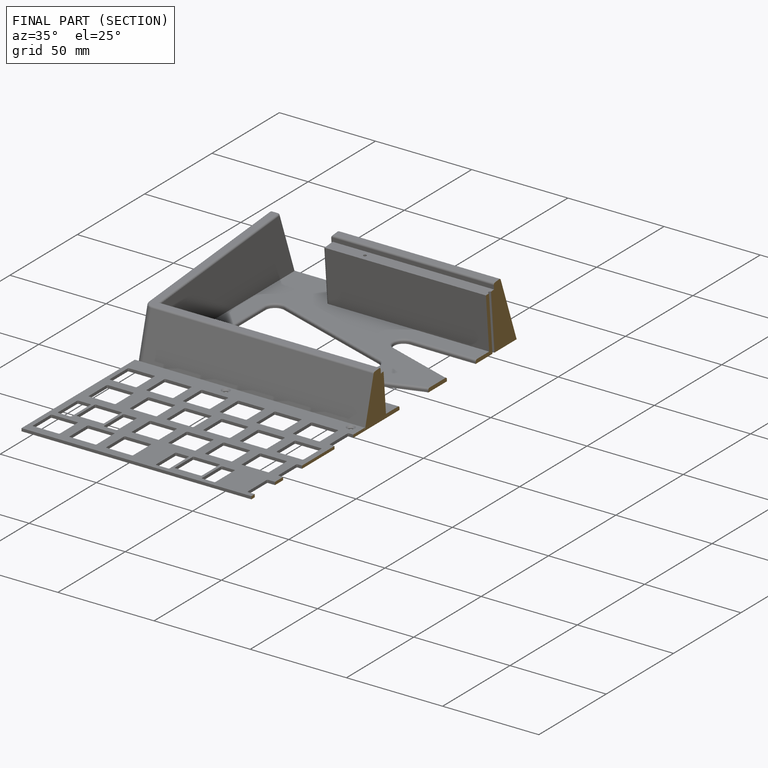
[diagram: finished part — half-section view (interior)]
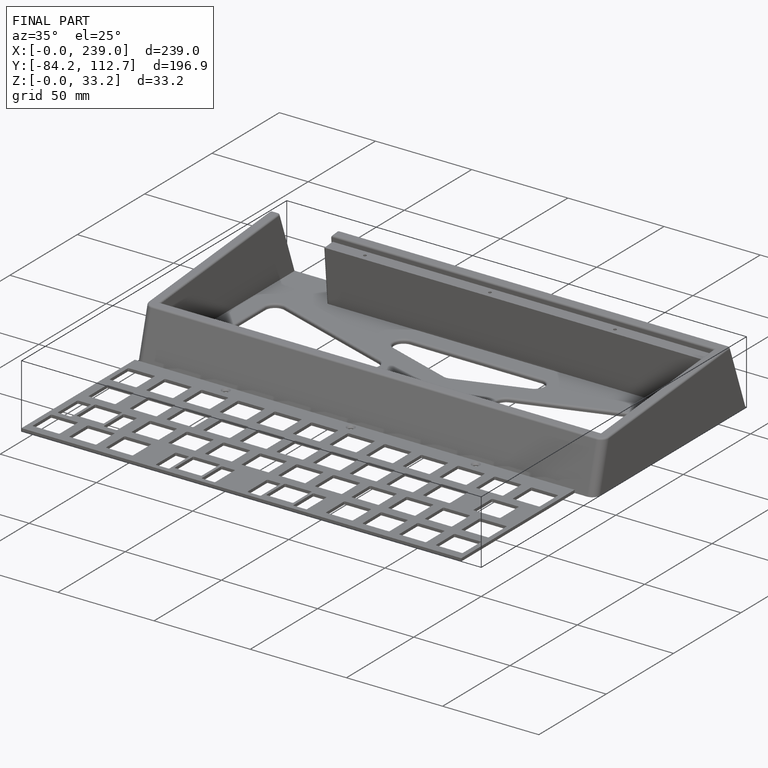
[diagram: finished part — iso view with bounding-box wireframe]
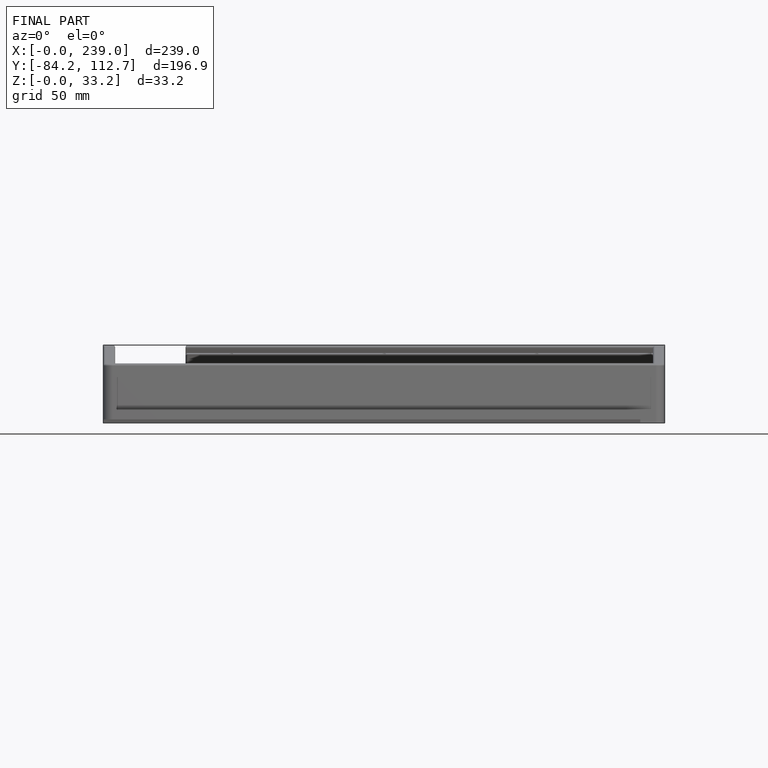
[diagram: finished part — front view with bounding-box wireframe]
